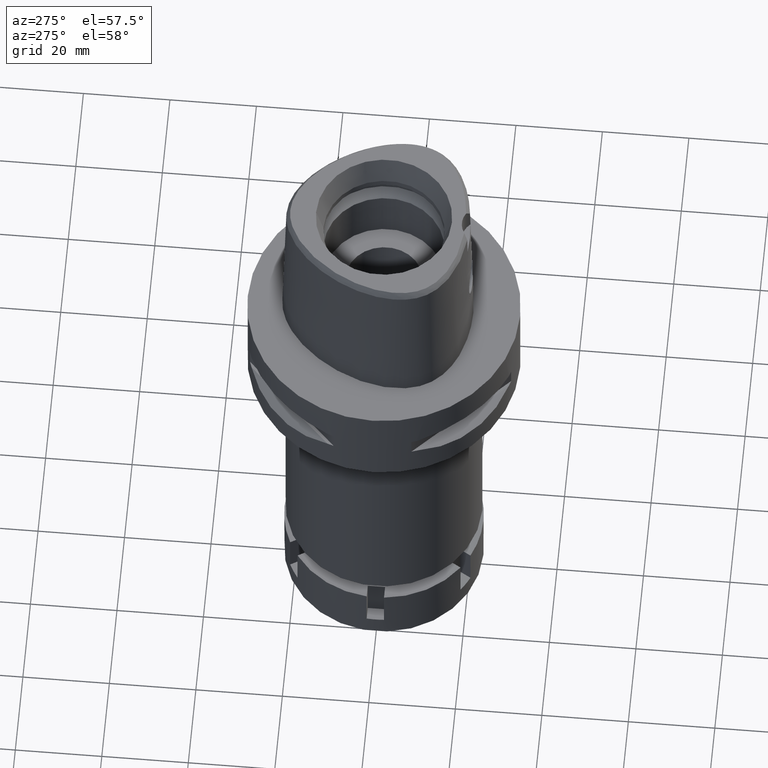
[diagram: clean part render]
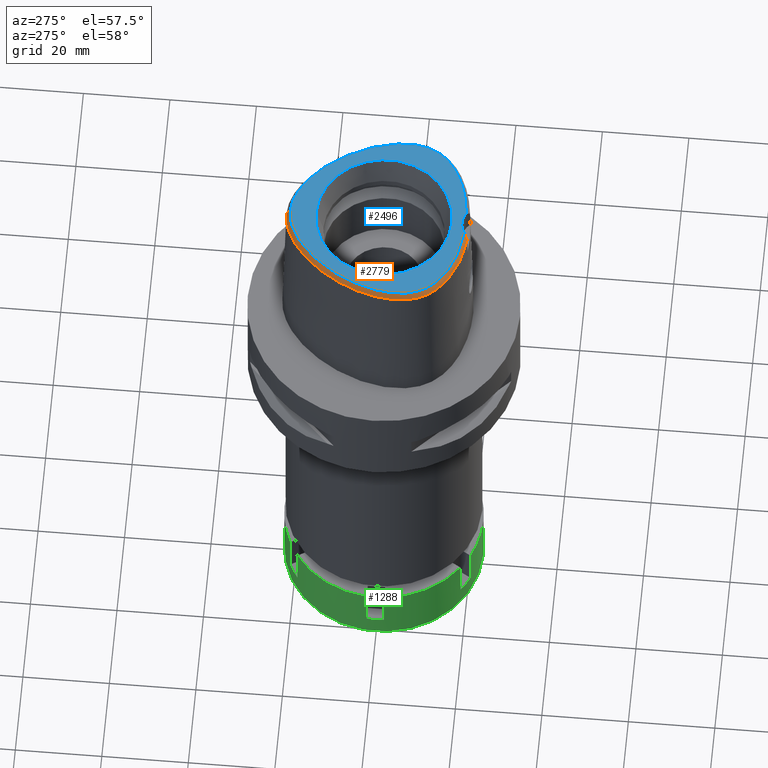
[diagram: same view with three faces highlighted in distinct colors, each labeled with its STEP entity id]
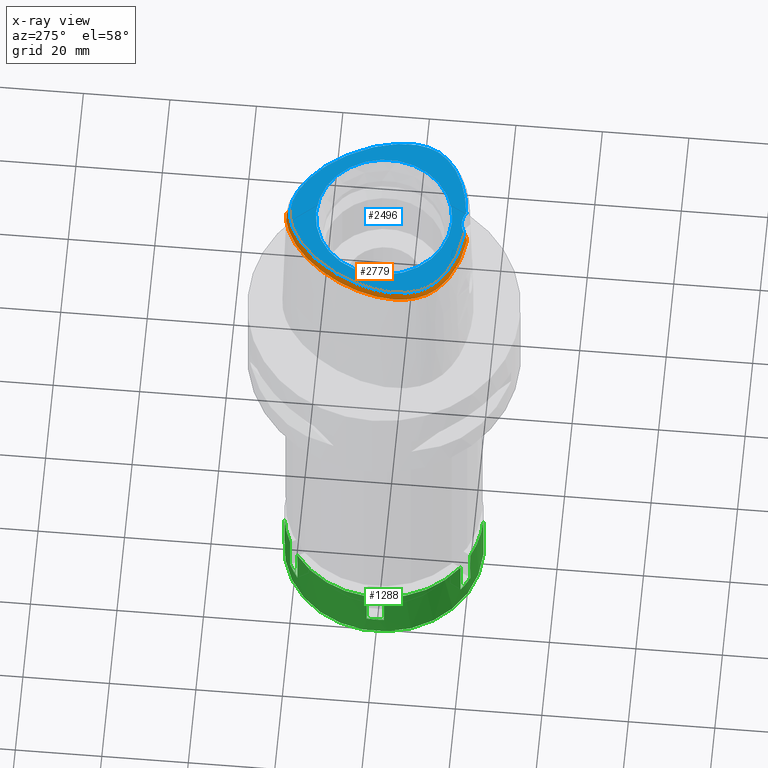
[diagram: x-ray of the same camera — body ghosted, the three highlighted faces saturated]
A machine part, auxiliary view with three faces highlighted in distinct colors.
The next image is the same camera in x-ray (body ghosted, the three faces saturated) — at least one of them is partly hidden behind the body in this view.
Their STEP definitions:

[orange] entity #2779 — the highlighted face is a freeform B-spline surface patch.
#10 = CARTESIAN_POINT ( 'NONE',  ( -15.15038978033000028, -15.03864540763000157, 37.56322869375999574 ) ) ;
#50 = CARTESIAN_POINT ( 'NONE',  ( -13.16713953014000005, 15.54133949133000137, 36.35395947133999783 ) ) ;
#70 = CARTESIAN_POINT ( 'NONE',  ( -3.625340603324000099, -19.67697575314999980, 36.35395948639999375 ) ) ;
#78 = CARTESIAN_POINT ( 'NONE',  ( -0.6885387249555999789, 22.28925284694999931, 36.95859335991000449 ) ) ;
#103 = CARTESIAN_POINT ( 'NONE',  ( -10.90612863959999856, 17.32090205043999731, 36.95859606775000117 ) ) ;
#126 = CARTESIAN_POINT ( 'NONE',  ( -3.587710275974999696, -19.32108740370999911, 36.95859407943999742 ) ) ;
#135 = CARTESIAN_POINT ( 'NONE',  ( -3.774312897363000019, 22.06457543379000086, 36.35395905078999590 ) ) ;
#147 = CARTESIAN_POINT ( 'NONE',  ( -20.30498420086619404, -2.177378896258108210, 38.00000000000602540 ) ) ;
#154 = ORIENTED_EDGE ( 'NONE', *, *, #4212, .F. ) ;
#164 = CARTESIAN_POINT ( 'NONE',  ( -1.444844799667000190, 22.57813437952000157, 36.35395800035999514 ) ) ;
#188 = CARTESIAN_POINT ( 'NONE',  ( -19.14162431203000025, 6.048192383088000668, 36.35395892603999357 ) ) ;
#219 = CARTESIAN_POINT ( 'NONE',  ( -20.18032387463000177, -6.169898114515000032, 38.16786330960000129 ) ) ;
#229 = CARTESIAN_POINT ( 'NONE',  ( -19.78262210840479085, -8.543146992552316021, 38.00000000000574829 ) ) ;
#250 = CARTESIAN_POINT ( 'NONE',  ( 0.5890749102622999667, 21.57221194158999822, 38.16786340651999865 ) ) ;
#251 = CARTESIAN_POINT ( 'NONE',  ( -18.70312053634999927, 4.222253440751999598, 38.16786341993000065 ) ) ;
#259 = CARTESIAN_POINT ( 'NONE',  ( -8.930096025510538382, -17.65000298921755117, 38.00000000000160583 ) ) ;
#280 = CARTESIAN_POINT ( 'NONE',  ( -15.16416192443000099, 11.20216741368000157, 38.16786325374999933 ) ) ;
#312 = CARTESIAN_POINT ( 'NONE',  ( -16.01279155438999879, 9.857706056881999857, 38.16786335483000414 ) ) ;
#343 = CARTESIAN_POINT ( 'NONE',  ( 0.3876455137443999832, 21.58262382774000088, 38.16786335732999902 ) ) ;
#344 = CARTESIAN_POINT ( 'NONE',  ( -12.48210061594000031, -16.57470777334999923, 37.56322838566000399 ) ) ;
#368 = CARTESIAN_POINT ( 'NONE',  ( -17.62230072611000153, -13.91838522321999960, 36.35395850057000189 ) ) ;
#391 = CARTESIAN_POINT ( 'NONE',  ( -0.6661047162883999562, 21.93191426646999886, 37.56322837070000276 ) ) ;
#392 = CARTESIAN_POINT ( 'NONE',  ( -19.22441456351000255, -10.58951875377000107, 37.56322835809000082 ) ) ;
#397 = CARTESIAN_POINT ( 'NONE',  ( -21.07430010673096632, -0.4408303445192867098, 36.52186244847991503 ) ) ;
#417 = CARTESIAN_POINT ( 'NONE',  ( -1.605369804321000336E-11, 22.56201468012000078, 36.52186680743999858 ) ) ;
#423 = CARTESIAN_POINT ( 'NONE',  ( -18.82384268177000308, -11.93989506594000005, 36.95859333033000382 ) ) ;
#448 = CARTESIAN_POINT ( 'NONE',  ( -18.11291861515000079, -12.29821181603999847, 37.56322859755999843 ) ) ;
#515 = CARTESIAN_POINT ( 'NONE',  ( -6.890736992325999566, 19.87733330400000398, 37.56322843629000374 ) ) ;
#534 = CARTESIAN_POINT ( 'NONE',  ( -2.658912240833000151, -19.04302082777000038, 37.56322870241000089 ) ) ;
#543 = CARTESIAN_POINT ( 'NONE',  ( -9.917277761165001593, 18.18069846793999744, 36.95859449011000208 ) ) ;
#565 = CARTESIAN_POINT ( 'NONE',  ( -2.315346753837999483, -19.42605033851999963, 36.95859411797000149 ) ) ;
#572 = CARTESIAN_POINT ( 'NONE',  ( -10.42248826329999822, 16.79304463237000178, 38.16786294503000221 ) ) ;
#595 = CARTESIAN_POINT ( 'NONE',  ( -4.743584968827000203, -18.82318717605999936, 37.56322844353000079 ) ) ;
#602 = CARTESIAN_POINT ( 'NONE',  ( -6.341444422649999524, 20.99792658918000043, 36.35395923324000478 ) ) ;
#631 = CARTESIAN_POINT ( 'NONE',  ( -16.05848412124000291, 11.79655541262999918, 36.35395960180999708 ) ) ;
#659 = CARTESIAN_POINT ( 'NONE',  ( -20.56233214407000176, -2.152052979090000040, 37.56322831735000278 ) ) ;
#662 = CARTESIAN_POINT ( 'NONE',  ( -16.39211280191862841, -14.95758113319446458, 36.52186244847991503 ) ) ;
#666 = CARTESIAN_POINT ( 'NONE',  ( -18.67608643721691664, -11.03561202290681109, 38.00000000000037659 ) ) ;
#667 = EDGE_CURVE ( 'NONE', #3250, #1306, #5200, .T. ) ;
#692 = CARTESIAN_POINT ( 'NONE',  ( -20.76973920178000199, -0.9174160877942999504, 36.95859383956999977 ) ) ;
#701 = CARTESIAN_POINT ( 'NONE',  ( -10.17136073855236944, -17.24644253469873334, 38.00000000000419931 ) ) ;
#723 = CARTESIAN_POINT ( 'NONE',  ( -19.54808487855000010, 1.495535803760999816, 38.16786291889000182 ) ) ;
#752 = CARTESIAN_POINT ( 'NONE',  ( -16.31992240643999992, 10.04153667100000114, 37.56322844011000228 ) ) ;
#777 = CARTESIAN_POINT ( 'NONE',  ( -14.72014127677000062, -16.17560700796000361, 36.35395908810999543 ) ) ;
#808 = CARTESIAN_POINT ( 'NONE',  ( -20.71450183704999759, -8.828806184154000647, 36.35395856603999931 ) ) ;
#816 = CARTESIAN_POINT ( 'NONE',  ( -18.24302769442001448, 5.671232572957698004, 37.99999999999921840 ) ) ;
#829 = CARTESIAN_POINT ( 'NONE',  ( -18.17745654283000079, -13.33370108546999866, 36.35395864847999547 ) ) ;
#835 = CARTESIAN_POINT ( 'NONE',  ( -3.470663397237000043E-11, 21.68728795390000030, 38.00000000000000000 ) ) ;
#852 = CARTESIAN_POINT ( 'NONE',  ( -18.52985251344999895, -11.73553907011000064, 37.56322835829999462 ) ) ;
#856 = CARTESIAN_POINT ( 'NONE',  ( -19.55745547455955347, -11.29150218116767057, 36.52186244847991503 ) ) ;
#881 = CARTESIAN_POINT ( 'NONE',  ( -19.54171041964999844, -10.75541008419999933, 36.95859332983000201 ) ) ;
#905 = CARTESIAN_POINT ( 'NONE',  ( -11.28010235475000123, -16.71605907058000184, 38.16786338290999936 ) ) ;
#930 = CARTESIAN_POINT ( 'NONE',  ( -10.49530729913000116, -18.16553456087999763, 36.35396120301000167 ) ) ;
#938 = CARTESIAN_POINT ( 'NONE',  ( -14.16093451503000189, 14.37682951567999901, 36.35395807642999699 ) ) ;
#974 = CARTESIAN_POINT ( 'NONE',  ( -9.159608993212000172, 19.22868359555000239, 36.35395806053999479 ) ) ;
#997 = CARTESIAN_POINT ( 'NONE',  ( -4.794238267573999401, -19.17753163727000043, 36.95859353355000110 ) ) ;
#1006 = CARTESIAN_POINT ( 'NONE',  ( -7.798332215142999679, 19.30990855371999970, 37.56322844619000278 ) ) ;
#1015 = CARTESIAN_POINT ( 'NONE',  ( -11.31790883121474245, -16.80796958613082381, 38.00000000000173372 ) ) ;
#1026 = CARTESIAN_POINT ( 'NONE',  ( -7.830028234579998525, -18.95689806576000080, 36.35396158063999650 ) ) ;
#1033 = CARTESIAN_POINT ( 'NONE',  ( -12.90047117724999914, 15.30255730893000177, 36.95859406990999929 ) ) ;
#1065 = CARTESIAN_POINT ( 'NONE',  ( -9.689138661478001069, 17.90485013905000145, 37.56322884472000112 ) ) ;
#1071 = CARTESIAN_POINT ( 'NONE',  ( -14.22011356156078854, -16.41829364185893070, 36.52186244847991503 ) ) ;
#1076 = CARTESIAN_POINT ( 'NONE',  ( -14.21001600787632668, -15.34519100085704757, 37.99999999999663913 ) ) ;
#1093 = CARTESIAN_POINT ( 'NONE',  ( -20.41580324275000180, -0.9709945636346999365, 37.56322857187999631 ) ) ;
#1099 = CARTESIAN_POINT ( 'NONE',  ( -7.599370508970219262, -18.01010694911127530, 38.00000000000416378 ) ) ;
#1114 = CARTESIAN_POINT ( 'NONE',  ( -18.81154580198999682, 5.909724988448000538, 36.95859372490999561 ) ) ;
#1123 = CARTESIAN_POINT ( 'NONE',  ( -16.36032397153664064, -13.76458520345263103, 38.00000000000527933 ) ) ;
#1148 = CARTESIAN_POINT ( 'NONE',  ( -20.40538841790999669, -7.070263956549999840, 37.56322838587999513 ) ) ;
#1159 = CARTESIAN_POINT ( 'NONE',  ( -2.017025177696580407, 21.50280829367656210, 37.99999999999843681 ) ) ;
#1179 = CARTESIAN_POINT ( 'NONE',  ( -20.99896943355000190, -3.250627267525999731, 36.95859349153000295 ) ) ;
#1187 = CARTESIAN_POINT ( 'NONE',  ( -18.79649882725014010, 4.256255933890983556, 37.99999999999428724 ) ) ;
#1203 = CARTESIAN_POINT ( 'NONE',  ( -21.12367516081000218, -0.8638376119537999331, 36.35395910725999613 ) ) ;
#1211 = CARTESIAN_POINT ( 'NONE',  ( -19.64434054693323972, 1.520253387635460474, 37.99999999999695888 ) ) ;
#1233 = CARTESIAN_POINT ( 'NONE',  ( -19.79142263181000061, -9.318827276318000230, 37.56322855786000048 ) ) ;
#1244 = CARTESIAN_POINT ( 'NONE',  ( -6.759433772717140521, 19.65454812513344152, 37.99999999999344880 ) ) ;
#1260 = DIRECTION ( 'NONE',  ( -1.086011392552015333E-11, -0.5092834681090075977, 0.8605988316927122295 ) ) ;
#1263 = CARTESIAN_POINT ( 'NONE',  ( 0.4009402277705999551, 21.94024584368000319, 37.56322843358999819 ) ) ;
#1264 = CARTESIAN_POINT ( 'NONE',  ( -19.88759380335999793, -7.786494108001000392, 38.16786336999999918 ) ) ;
#1266 = CARTESIAN_POINT ( 'NONE',  ( -19.88562090098679747, 4.345879983791757439, 36.52186244847991503 ) ) ;
#1283 = CARTESIAN_POINT ( 'NONE',  ( -14.94629303257000075, -14.74452356207999948, 38.16786325734000229 ) ) ;
#1286 = CARTESIAN_POINT ( 'NONE',  ( -17.27359245833809354, 9.972912913899113718, 36.52186244847991503 ) ) ;
#1304 = CARTESIAN_POINT ( 'NONE',  ( -18.59108613125999909, -10.98407522703000083, 38.16786333667000264 ) ) ;
#1306 = VERTEX_POINT ( 'NONE', #1426 ) ;
#1310 = CARTESIAN_POINT ( 'NONE',  ( -1.605369804321000336E-11, 22.56201468012000078, 36.52186680743999858 ) ) ;
#1333 = CARTESIAN_POINT ( 'NONE',  ( -15.55858327586000023, -15.62688909874999865, 36.35395956657999506 ) ) ;
#1357 = CARTESIAN_POINT ( 'NONE',  ( -6.304926216229000069, -18.92371235573000021, 36.95859340047000074 ) ) ;
#1365 = CARTESIAN_POINT ( 'NONE',  ( -11.14794882775999874, 17.58483075947000174, 36.35396262910999354 ) ) ;
#1395 = CARTESIAN_POINT ( 'NONE',  ( -7.600222001427000329, 19.01174521215000013, 38.16786335247999773 ) ) ;
#1422 = CARTESIAN_POINT ( 'NONE',  ( -2.715063951134999876, -19.75646607000999921, 36.35395959921999776 ) ) ;
#1426 = CARTESIAN_POINT ( 'NONE',  ( -3.637738201363999835, -19.56971413236999879, 36.52186244848000030 ) ) ;
#1432 = CARTESIAN_POINT ( 'NONE',  ( -4.601586388745999123, 21.77736232270999750, 36.35395856467999920 ) ) ;
#1459 = CARTESIAN_POINT ( 'NONE',  ( -2.197177101917999753, 22.46070701073999842, 36.35395857636999750 ) ) ;
#1482 = CARTESIAN_POINT ( 'NONE',  ( -13.32720054688000033, 13.70005323282000020, 38.16786340929999710 ) ) ;
#1514 = CARTESIAN_POINT ( 'NONE',  ( -20.19525176418000001, 0.2759473565857999966, 37.56322937251999861 ) ) ;
#1544 = CARTESIAN_POINT ( 'NONE',  ( -15.46226932337000015, 11.40029674666000048, 37.56322870310999917 ) ) ;
#1551 = CARTESIAN_POINT ( 'NONE',  ( -19.98419490692120704, -7.809898894995577656, 38.00000000000395062 ) ) ;
#1568 = CARTESIAN_POINT ( 'NONE',  ( -15.76037672230000020, 11.59842607965000028, 36.95859415246000168 ) ) ;
#1579 = CARTESIAN_POINT ( 'NONE',  ( -13.40435640711567444, 13.76268382997401396, 37.99999999999465672 ) ) ;
#1599 = CARTESIAN_POINT ( 'NONE',  ( -21.37513957252999930, -4.320513293869000293, 36.35395876102000301 ) ) ;
#1626 = CARTESIAN_POINT ( 'NONE',  ( -20.05309440341999760, -7.006534627607000409, 38.16786337566999521 ) ) ;
#1628 = CARTESIAN_POINT ( 'NONE',  ( -21.14970188364014803, -6.717195958887186791, 36.52186244847991503 ) ) ;
#1650 = CARTESIAN_POINT ( 'NONE',  ( -18.23586234512999837, -11.53118307427999945, 38.16786338626000230 ) ) ;
#1657 = CARTESIAN_POINT ( 'NONE',  ( -17.60426951086681413, 7.098774535281042297, 38.00000000000002842 ) ) ;
#1677 = CARTESIAN_POINT ( 'NONE',  ( -17.11838767238999992, -13.40967247836000098, 37.56322841088999809 ) ) ;
#1680 = CARTESIAN_POINT ( 'NONE',  ( -21.32871527669426825, -4.105831244393869817, 36.52186244847991503 ) ) ;
#1700 = CARTESIAN_POINT ( 'NONE',  ( -0.02690019403181000135, 22.30995777124000057, 36.95859372028999701 ) ) ;
#1701 = CARTESIAN_POINT ( 'NONE',  ( -19.84909125819999787, -10.12091896467999952, 36.95859363188999680 ) ) ;
#1721 = CARTESIAN_POINT ( 'NONE',  ( -14.34537603641000025, -15.56553910214999981, 37.56322856678999500 ) ) ;
#1747 = CARTESIAN_POINT ( 'NONE',  ( -20.46205571099999787, -9.569826591283000283, 36.35395905445000153 ) ) ;
#1785 = CARTESIAN_POINT ( 'NONE',  ( -8.518930515595000585, 18.36680724309000112, 38.16786341093000345 ) ) ;
#1803 = CARTESIAN_POINT ( 'NONE',  ( -11.55245620704999965, -17.37817269019999955, 36.95859335116000466 ) ) ;
#1811 = CARTESIAN_POINT ( 'NONE',  ( -2.131002494131999825, 22.10884525754000052, 36.95859350368999685 ) ) ;
#1828 = ORIENTED_EDGE ( 'NONE', *, *, #3659, .T. ) ;
#1829 = CARTESIAN_POINT ( 'NONE',  ( -10.37631308531999963, -17.82792754050999662, 36.95859516549000290 ) ) ;
#1841 = CARTESIAN_POINT ( 'NONE',  ( -1.998653278561000279, 21.40512175111999937, 38.16786335832000532 ) ) ;
#1854 = VECTOR ( 'NONE', #1260, 1000.000000000000227 ) ;
#1864 = CARTESIAN_POINT ( 'NONE',  ( -11.68863313321000064, -17.70922950001000018, 36.35395833528000509 ) ) ;
#1875 = CARTESIAN_POINT ( 'NONE',  ( -12.15890973423000077, 16.61225137499999960, 36.35396243106000469 ) ) ;
#1885 = CARTESIAN_POINT ( 'NONE',  ( -20.16012968311774500, -1.009698174524371383, 38.00000000000088107 ) ) ;
#1902 = CARTESIAN_POINT ( 'NONE',  ( -1.311317593712999940, 21.51235892397000171, 38.16786341707000219 ) ) ;
#1924 = CARTESIAN_POINT ( 'NONE',  ( -20.58820833919999771, 1.762630088281999852, 36.35396288532000142 ) ) ;
#1957 = CARTESIAN_POINT ( 'NONE',  ( -18.48392183556000035, 7.518029980911999921, 36.35395963090000038 ) ) ;
#1959 = CARTESIAN_POINT ( 'NONE',  ( -3.637738201363999835, -19.56971413236999879, 36.52186244848000030 ) ) ;
#1961 = CARTESIAN_POINT ( 'NONE',  ( -18.90964971338283007, -12.28759719904299530, 36.52186244847991503 ) ) ;
#1985 = CARTESIAN_POINT ( 'NONE',  ( -19.51022437302999890, 2.945135197882999822, 37.56322899059000520 ) ) ;
#2015 = CARTESIAN_POINT ( 'NONE',  ( -17.83768230383000031, 7.210022561101999905, 37.56322871081999892 ) ) ;
#2042 = CARTESIAN_POINT ( 'NONE',  ( -21.33654436753000283, -5.341518229841999421, 36.35395959483999206 ) ) ;
#2073 = CARTESIAN_POINT ( 'NONE',  ( -17.64390757331999993, -12.85614267694999846, 37.56322845014000222 ) ) ;
#2080 = CARTESIAN_POINT ( 'NONE',  ( -0.2181979014508494408, 21.68728795389095154, 37.99999999999499778 ) ) ;
#2097 = CARTESIAN_POINT ( 'NONE',  ( -15.65667228141999878, -14.22012789572000102, 38.16786334214000220 ) ) ;
#2120 = CARTESIAN_POINT ( 'NONE',  ( -0.6436707076212000445, 21.57457568598000108, 38.16786338149000102 ) ) ;
#2121 = CARTESIAN_POINT ( 'NONE',  ( -13.79854264827999977, -16.70852273475000160, 36.35395852602999867 ) ) ;
#2130 = CARTESIAN_POINT ( 'NONE',  ( -3.481017203588989695, 21.13509756881703083, 38.00000000000036948 ) ) ;
#2150 = CARTESIAN_POINT ( 'NONE',  ( -18.89725273204999922, -11.16970803659999945, 37.56322848734000530 ) ) ;
#2169 = CARTESIAN_POINT ( 'NONE',  ( -16.76765683253000105, -14.22752928475000012, 36.95859339051000347 ) ) ;
#2205 = CARTESIAN_POINT ( 'NONE',  ( -6.176918465431000094, 20.67997868339999812, 36.95859391927000814 ) ) ;
#2229 = CARTESIAN_POINT ( 'NONE',  ( -6.372594521581000038, -19.27520775933999886, 36.35395841322999644 ) ) ;
#2236 = CARTESIAN_POINT ( 'NONE',  ( -14.26396340222999903, 12.48874883375999900, 38.16786328278999463 ) ) ;
#2264 = CARTESIAN_POINT ( 'NONE',  ( -4.346641659772999766, 21.10826892917000208, 37.56322842790000749 ) ) ;
#2291 = CARTESIAN_POINT ( 'NONE',  ( -11.39494170168999965, 15.85757360652999992, 38.16786296522000299 ) ) ;
#2302 = CARTESIAN_POINT ( 'NONE',  ( -2.682279906006999948, -18.78035848609999903, 38.00000000000000000 ) ) ;
#2312 = CARTESIAN_POINT ( 'NONE',  ( -2.291183150406999935, -19.06905091896999949, 37.56322868863999531 ) ) ;
#2324 = CARTESIAN_POINT ( 'NONE',  ( -5.456848231470000421, 21.42381876989000133, 36.35395909257999847 ) ) ;
#2344 = VERTEX_POINT ( 'NONE', #1310 ) ;
#2350 = CARTESIAN_POINT ( 'NONE',  ( -16.79889324731000144, 8.470873738525000363, 38.16786331702000723 ) ) ;
#2354 = CARTESIAN_POINT ( 'NONE',  ( -7.300578999875143360, -19.07170748891650547, 36.52186244847991503 ) ) ;
#2358 = CARTESIAN_POINT ( 'NONE',  ( -13.33457781970206035, -15.85148397417591326, 38.00000000000486011 ) ) ;
#2375 = CARTESIAN_POINT ( 'NONE',  ( -20.28373007236999825, -3.282812625570000087, 38.16786336028000193 ) ) ;
#2384 = CARTESIAN_POINT ( 'NONE',  ( -19.28591707036719072, -9.869682450886196889, 37.99999999999479172 ) ) ;
#2410 = CARTESIAN_POINT ( 'NONE',  ( -20.65919246777000140, -4.313831115803999694, 37.56322847999999937 ) ) ;
#2420 = CARTESIAN_POINT ( 'NONE',  ( -20.38301517462483758, -3.278344853327663344, 38.00000000000067502 ) ) ;
#2435 = CARTESIAN_POINT ( 'NONE',  ( -20.64134975296000007, -3.266719946548000131, 37.56322842591000466 ) ) ;
#2462 = CARTESIAN_POINT ( 'NONE',  ( -17.51456253797000073, 7.056018851196999897, 38.16786325077999464 ) ) ;
#2470 = CARTESIAN_POINT ( 'NONE',  ( -5.893543501600780665, 20.13235399352013033, 38.00000000000671463 ) ) ;
#2490 = CARTESIAN_POINT ( 'NONE',  ( 0.6486116613664999475, 22.64393848766000161, 36.35395810376999748 ) ) ;
#2491 = CARTESIAN_POINT ( 'NONE',  ( -13.45768933027999914, -16.07889633377000038, 37.56322841765000220 ) ) ;
#2501 = CARTESIAN_POINT ( 'NONE',  ( -5.058220461389300482, 20.53445508814699139, 38.00000000000193978 ) ) ;
#2520 = CARTESIAN_POINT ( 'NONE',  ( -19.50958593361999860, -11.54097365574999934, 36.35395878867000619 ) ) ;
#2540 = CARTESIAN_POINT ( 'NONE',  ( 0.4275296558230999855, 22.65548987557000160, 36.35395858612999831 ) ) ;
#2541 = CARTESIAN_POINT ( 'NONE',  ( -15.87717211631000147, -14.50217158712000121, 37.56322847308999968 ) ) ;
#2549 = CARTESIAN_POINT ( 'NONE',  ( -1.323674540693887014, 21.61098849315564152, 38.00000000000522249 ) ) ;
#2571 = CARTESIAN_POINT ( 'NONE',  ( -16.29466636114000266, -13.68996367143999926, 38.16786337657000416 ) ) ;
#2598 = CARTESIAN_POINT ( 'NONE',  ( -19.20341933282999847, -11.35534084617999895, 36.95859363800999375 ) ) ;
#2620 = CARTESIAN_POINT ( 'NONE',  ( -3.512449621277000222, -18.60931070483000127, 38.16786326551999764 ) ) ;
#2649 = CARTESIAN_POINT ( 'NONE',  ( -10.13832465769000102, -17.15271349974999993, 38.16786309046000270 ) ) ;
#2660 = CARTESIAN_POINT ( 'NONE',  ( -0.7109727336228000016, 22.64659142744000064, 36.35395834911999913 ) ) ;
#2694 = CARTESIAN_POINT ( 'NONE',  ( -4.474114024259000288, 21.44281562593999979, 36.95859349628999979 ) ) ;
#2709 = CARTESIAN_POINT ( 'NONE',  ( -3.470663397237000043E-11, 21.68728795390000030, 38.00000000000000000 ) ) ;
#2712 = CARTESIAN_POINT ( 'NONE',  ( -9.003660969468999298, -17.89789688177000215, 37.56322955318000822 ) ) ;
#2713 = ORIENTED_EDGE ( 'NONE', *, *, #667, .F. ) ;
#2719 = CARTESIAN_POINT ( 'NONE',  ( -6.012392508212999864, 20.36203077763000024, 37.56322860531000174 ) ) ;
#2737 = CARTESIAN_POINT ( 'NONE',  ( -11.41627928090000132, -17.04711588039000247, 37.56322836702999979 ) ) ;
#2745 = CARTESIAN_POINT ( 'NONE',  ( -5.017568388334000318, 20.44375775073999790, 38.16786330568000096 ) ) ;
#2746 = CARTESIAN_POINT ( 'NONE',  ( -3.339321438881808213, -19.25325016375728993, 37.10705438588595229 ) ) ;
#2774 = CARTESIAN_POINT ( 'NONE',  ( -10.14541686085000016, 18.45654679682999699, 36.35396013550999328 ) ) ;
#2777 = CARTESIAN_POINT ( 'NONE',  ( -17.90324032096656026, -13.53935111955590287, 36.52186244847991503 ) ) ;
#2779 = ADVANCED_FACE ( 'NONE', ( #3340 ), #3987, .F. ) ;
#2800 = CARTESIAN_POINT ( 'NONE',  ( -16.62705325849999838, 10.22536728510999815, 36.95859352539000042 ) ) ;
#2809 = CARTESIAN_POINT ( 'NONE',  ( -17.45119705494280282, -12.68365517585401747, 38.00000000000255085 ) ) ;
#2829 = CARTESIAN_POINT ( 'NONE',  ( -20.24150051898000058, 1.673598660107999958, 36.95859622983999770 ) ) ;
#2838 = CARTESIAN_POINT ( 'NONE',  ( -20.40060226222913542, -4.311417605381127061, 38.00000000000714806 ) ) ;
#2861 = CARTESIAN_POINT ( 'NONE',  ( -16.93418411054999950, 10.40919789922999961, 36.35395861066999856 ) ) ;
#2888 = CARTESIAN_POINT ( 'NONE',  ( -20.97929791243999986, -5.318359200124000097, 36.95859414803999954 ) ) ;
#2911 = CARTESIAN_POINT ( 'NONE',  ( -20.53569896028000130, -6.213206022773999138, 37.56322855778000047 ) ) ;
#2921 = CARTESIAN_POINT ( 'NONE',  ( -12.44116897271390521, 14.89128547409819170, 37.99999999999827338 ) ) ;
#2943 = CARTESIAN_POINT ( 'NONE',  ( -14.15799341624000007, -15.26050514924000012, 38.16786330613000189 ) ) ;
#2966 = CARTESIAN_POINT ( 'NONE',  ( -18.90711870736000222, -10.42362742332999836, 38.16786338634999964 ) ) ;
#2970 = CARTESIAN_POINT ( 'NONE',  ( -13.70645028111170305, 15.04851272300122567, 36.52186244847991503 ) ) ;
#2991 = CARTESIAN_POINT ( 'NONE',  ( -19.45610609220999976, -9.193327618834999271, 38.16786330956999507 ) ) ;
#2995 = CARTESIAN_POINT ( 'NONE',  ( -0.7901461696975589089, 22.56201478746490352, 36.52186244847991503 ) ) ;
#3017 = CARTESIAN_POINT ( 'NONE',  ( -13.28726267127999883, -15.76408313328999888, 38.16786336346000041 ) ) ;
#3028 = B_SPLINE_CURVE_WITH_KNOTS ( 'NONE', 3,
 ( #2302, #4860, #3709, #5306, #4485, #1099, #259, #701, #1015, #3185, #2358, #1076, #5392, #3651, #1123, #3245, #2809, #4090, #4509, #666, #4543, #2384, #4885, #229, #1551, #3267, #3603, #5416, #2838, #2420, #147, #1885, #5029, #1211, #4148, #1187, #816, #1657, #3407, #4663, #3374, #4687, #1579, #2921, #5447, #5494, #4228, #5083, #5108, #1244, #2470, #2501, #3294, #2130, #4628, #1159, #2549, #4253, #2080, #835 ),
 .UNSPECIFIED., .F., .F.,
 ( 4, 1, 1, 1, 1, 1, 1, 1, 1, 1, 1, 1, 1, 1, 1, 1, 1, 1, 1, 1, 1, 1, 1, 1, 1, 1, 1, 1, 1, 1, 1, 1, 1, 1, 1, 1, 1, 1, 1, 1, 1, 1, 1, 1, 1, 1, 1, 1, 1, 1, 1, 1, 1, 1, 1, 1, 1, 4 ),
 ( 0.0000000000000000000, 0.005420919554200098744, 0.02318126027639999531, 0.04094160099879995407, 0.05870194172099996166, 0.07646228244330000035, 0.09422262316550000794, 0.1119829638877999356, 0.1297433046099999432, 0.1475036453321999508, 0.1652639860544999895, 0.1830243267768000281, 0.2007846674991000668, 0.2185450082212999634, 0.2363053489436000021, 0.2540656896658000097, 0.2718260303881000484, 0.2895863711103000560, 0.3073467118325999836, 0.3251070525547999912, 0.3428673932771000299, 0.3606277339994000686, 0.3783880747216000762, 0.3961484154438998928, 0.4139087561661000114, 0.4316690968884000501, 0.4494294376106000577, 0.4671897783328999854, 0.4849501190552000240, 0.5027104597774000316, 0.5204708004996999593, 0.5382311412219000779, 0.5559914819442000056, 0.5737518226664000132, 0.5915121633886999408, 0.6092725041108999484, 0.6270328448331999871, 0.6447931855555000258, 0.6625535262777000334, 0.6803138669999999610, 0.6980742077221999686, 0.7158345484445000073, 0.7335948891667000149, 0.7513552298890000536, 0.7691155706112000612, 0.7868759113336000199, 0.8046362520558000275, 0.8223965927780999552, 0.8401569335002999628, 0.8579172742224999704, 0.8756776149448000091, 0.8934379556670000166, 0.9111982963893099363, 0.9289586371115700070, 0.9467189778338299666, 0.9644793185560800453, 0.9822396592783400049, 1.000000000000000000 ),
 .UNSPECIFIED. ) ;
#3047 = CARTESIAN_POINT ( 'NONE',  ( -12.78879585974000044, -17.22164497713000486, 36.35395840547999313 ) ) ;
#3072 = CARTESIAN_POINT ( 'NONE',  ( -2.686988095984000235, -19.39974344888999980, 36.95859415081999799 ) ) ;
#3081 = CARTESIAN_POINT ( 'NONE',  ( -13.88302319230999871, 14.15123742139000029, 36.95859318737999644 ) ) ;
#3112 = CARTESIAN_POINT ( 'NONE',  ( -2.973290126073999673, 22.29086245803999944, 36.35395918132999782 ) ) ;
#3133 = EDGE_CURVE ( 'NONE', #2344, #3438, #5460, .T. ) ;
#3148 = CARTESIAN_POINT ( 'NONE',  ( -7.996442428859999119, 19.60807189527999839, 36.95859353990999807 ) ) ;
#3170 = CARTESIAN_POINT ( 'NONE',  ( -2.128423408895999902, -19.79603970124000156, 36.35395949360999879 ) ) ;
#3176 = CARTESIAN_POINT ( 'NONE',  ( -2.798742454348999598, 21.59641563115999929, 37.56322859152999882 ) ) ;
#3177 = CARTESIAN_POINT ( 'NONE',  ( -2.682279906006999948, -18.78035848609999903, 38.00000000000000000 ) ) ;
#3185 = CARTESIAN_POINT ( 'NONE',  ( -12.37132652997748572, -16.34104299088226142, 38.00000000000150635 ) ) ;
#3202 = CARTESIAN_POINT ( 'NONE',  ( -13.60511186959000085, 13.92564532711000069, 37.56322829834000032 ) ) ;
#3206 = CARTESIAN_POINT ( 'NONE',  ( -3.637738201363999835, -19.56971413236999879, 36.52186244848000030 ) ) ;
#3236 = CARTESIAN_POINT ( 'NONE',  ( -19.85212481645999816, 3.051125278595999912, 36.95859483793000066 ) ) ;
#3245 = CARTESIAN_POINT ( 'NONE',  ( -16.93638123745949997, -13.22593246128331224, 37.99999999999903366 ) ) ;
#3250 = VERTEX_POINT ( 'NONE', #4185 ) ;
#3260 = CARTESIAN_POINT ( 'NONE',  ( -20.20607828970000241, -2.187112344610000036, 38.16786340201000627 ) ) ;
#3267 = CARTESIAN_POINT ( 'NONE',  ( -20.15090095364848821, -7.024227649787176730, 38.00000000000503064 ) ) ;
#3285 = CARTESIAN_POINT ( 'NONE',  ( -17.42985205068000099, 8.809080024221000116, 36.95859375995000562 ) ) ;
#3294 = CARTESIAN_POINT ( 'NONE',  ( -4.254559144977351437, 20.86660163697591486, 37.99999999999717204 ) ) ;
#3314 = CARTESIAN_POINT ( 'NONE',  ( -14.84071060225999972, 12.91284835597999958, 36.95859397228000631 ) ) ;
#3319 = CARTESIAN_POINT ( 'NONE',  ( -20.09619618741098179, -10.23243843868510972, 36.52186244847991503 ) ) ;
#3340 = FACE_OUTER_BOUND ( 'NONE', #3770, .T. ) ;
#3341 = CARTESIAN_POINT ( 'NONE',  ( -17.74533145235999854, 8.978183167070000081, 36.35395898140999549 ) ) ;
#3365 = CARTESIAN_POINT ( 'NONE',  ( -17.37034419925000250, -13.66402885078999851, 36.95859345573000354 ) ) ;
#3374 = CARTESIAN_POINT ( 'NONE',  ( -15.24692477332513185, 11.25717358966068105, 38.00000000000471800 ) ) ;
#3397 = CARTESIAN_POINT ( 'NONE',  ( -20.02989326778000034, -8.618945700605999960, 37.56322842827000130 ) ) ;
#3407 = CARTESIAN_POINT ( 'NONE',  ( -16.88647904405223699, 8.517821442302320634, 38.00000000000387956 ) ) ;
#3422 = CARTESIAN_POINT ( 'NONE',  ( -16.31817178611000330, -15.06625896991000069, 36.35395873496999997 ) ) ;
#3426 = CARTESIAN_POINT ( 'NONE',  ( -1.605369804321000336E-11, 22.56201468012000078, 36.52186680743999858 ) ) ;
#3438 = VERTEX_POINT ( 'NONE', #2709 ) ;
#3445 = CARTESIAN_POINT ( 'NONE',  ( -20.37219755240999675, -8.723875942380001192, 36.95859349715000519 ) ) ;
#3473 = CARTESIAN_POINT ( 'NONE',  ( -18.67457766933999963, -12.74238865336999993, 36.35395920405000680 ) ) ;
#3504 = CARTESIAN_POINT ( 'NONE',  ( -2.084480387990000239, -19.08177111454000041, 37.56322867438999680 ) ) ;
#3512 = CARTESIAN_POINT ( 'NONE',  ( -4.219169295286000043, 20.77372223240000082, 38.16786335951000098 ) ) ;
#3529 = CARTESIAN_POINT ( 'NONE',  ( -7.660574762563000739, -18.26133479526000158, 37.56322922817999910 ) ) ;
#3536 = CARTESIAN_POINT ( 'NONE',  ( -3.558842231872000106, 21.38173140171999975, 37.56322855688999596 ) ) ;
#3556 = CARTESIAN_POINT ( 'NONE',  ( -8.901822988930000236, -17.55473053042000231, 38.16786292704000516 ) ) ;
#3566 = CARTESIAN_POINT ( 'NONE',  ( -8.732490008134000448, 18.65409936058000184, 37.56322829412999909 ) ) ;
#3588 = CARTESIAN_POINT ( 'NONE',  ( -2.062508877537000185, -18.72463682118999984, 38.16786326479000024 ) ) ;
#3595 = CARTESIAN_POINT ( 'NONE',  ( -12.63380282436000002, 15.06377512651999950, 37.56322866848000075 ) ) ;
#3603 = CARTESIAN_POINT ( 'NONE',  ( -20.27898581532433298, -6.181921586189814022, 38.00000000000209610 ) ) ;
#3612 = CARTESIAN_POINT ( 'NONE',  ( -12.63544823784000037, -16.89817637523999849, 36.95859339557000567 ) ) ;
#3617 = CARTESIAN_POINT ( 'NONE',  ( -5.310421617090999469, 21.09713176350999930, 36.95859383028000167 ) ) ;
#3643 = CARTESIAN_POINT ( 'NONE',  ( -20.06186728372999895, -1.024573039475000114, 38.16786330417999551 ) ) ;
#3651 = CARTESIAN_POINT ( 'NONE',  ( -15.71788912669596527, -14.29843101565650798, 37.99999999999530331 ) ) ;
#3659 = EDGE_CURVE ( 'NONE', #3250, #3438, #3028, .T. ) ;
#3676 = CARTESIAN_POINT ( 'NONE',  ( -19.03946419524000078, 4.344728620406000275, 37.56322827067999981 ) ) ;
#3702 = CARTESIAN_POINT ( 'NONE',  ( -18.48146729195000049, 5.771257593808000408, 37.56322852378999499 ) ) ;
#3709 = CARTESIAN_POINT ( 'NONE',  ( -3.522896839653774315, -18.70811514173104939, 38.00000000000355271 ) ) ;
#3725 = CARTESIAN_POINT ( 'NONE',  ( -19.89479269875999989, 1.584567231934999931, 37.56322957437000554 ) ) ;
#3754 = CARTESIAN_POINT ( 'NONE',  ( -21.24644913157000303, -6.299821839290999925, 36.35395905416000062 ) ) ;
#3770 = EDGE_LOOP ( 'NONE', ( #1828, #5499, #154, #2713 ) ) ;
#3781 = CARTESIAN_POINT ( 'NONE',  ( -17.37713308856999816, -12.61736347269000014, 38.16786335097000205 ) ) ;
#3806 = CARTESIAN_POINT ( 'NONE',  ( -19.52211539878999957, -9.975052416126001020, 37.56322848477000065 ) ) ;
#3832 = CARTESIAN_POINT ( 'NONE',  ( -0.02534327079622999968, 21.59391821884999985, 38.16786332339999888 ) ) ;
#3833 = CARTESIAN_POINT ( 'NONE',  ( -12.32875299405000113, -16.25123917147000085, 38.16786337574999521 ) ) ;
#3855 = CARTESIAN_POINT ( 'NONE',  ( -19.85900627579999878, -10.92130141464000026, 36.35395830158000052 ) ) ;
#3858 = CARTESIAN_POINT ( 'NONE',  ( -2.376843896517638388, 22.39422508473669637, 36.52186244847991503 ) ) ;
#3877 = CARTESIAN_POINT ( 'NONE',  ( -17.00415206822000158, -14.49631209141000099, 36.35395839748000668 ) ) ;
#3911 = CARTESIAN_POINT ( 'NONE',  ( -7.254270327737000201, 20.49414863718999769, 36.35395859631999826 ) ) ;
#3930 = CARTESIAN_POINT ( 'NONE',  ( -3.550079948626000181, -18.96519905427000197, 37.56322867248000108 ) ) ;
#3937 = CARTESIAN_POINT ( 'NONE',  ( -14.55233700223999982, 12.70079859486999929, 37.56322862752999470 ) ) ;
#3963 = CARTESIAN_POINT ( 'NONE',  ( -9.460999561790000456, 17.62900181015000101, 38.16786319931999572 ) ) ;
#3984 = CARTESIAN_POINT ( 'NONE',  ( -4.692931670080000117, -18.46884271483999740, 38.16786335351000048 ) ) ;
#3987 = B_SPLINE_SURFACE_WITH_KNOTS ( 'NONE', 3, 3, ( 
 ( #250, #5047, #4617, #2490 ),
 ( #343, #1263, #4678, #2540 ),
 ( #3832, #5540, #1700, #4244 ),
 ( #2120, #391, #78, #2660 ),
 ( #1902, #4447, #5298, #164 ),
 ( #1841, #4787, #1811, #1459 ),
 ( #4025, #3176, #3995, #3112 ),
 ( #4479, #3536, #4851, #135 ),
 ( #3512, #2264, #2694, #1432 ),
 ( #2745, #4361, #3617, #2324 ),
 ( #4416, #2719, #2205, #602 ),
 ( #5269, #515, #5238, #3911 ),
 ( #1395, #1006, #3148, #4391 ),
 ( #1785, #3566, #4818, #974 ),
 ( #3963, #1065, #543, #2774 ),
 ( #572, #5322, #103, #1365 ),
 ( #2291, #4904, #5211, #1875 ),
 ( #4876, #3595, #1033, #50 ),
 ( #1482, #3202, #3081, #938 ),
 ( #2236, #3937, #3314, #4139 ),
 ( #280, #1544, #1568, #631 ),
 ( #312, #752, #2800, #2861 ),
 ( #2350, #4588, #3285, #3341 ),
 ( #2462, #2015, #4532, #1957 ),
 ( #4988, #3702, #1114, #188 ),
 ( #251, #3676, #5382, #4564 ),
 ( #4052, #1985, #3236, #4500 ),
 ( #723, #3725, #2829, #1924 ),
 ( #4163, #1514, #5048, #4932 ),
 ( #3643, #1093, #692, #1203 ),
 ( #3260, #659, #4958, #5353 ),
 ( #2375, #2435, #1179, #5409 ),
 ( #5466, #2410, #5435, #1599 ),
 ( #5022, #4081, #2888, #2042 ),
 ( #219, #2911, #4115, #3754 ),
 ( #1626, #1148, #5542, #4700 ),
 ( #1264, #5173, #4618, #4245 ),
 ( #4303, #3397, #3445, #808 ),
 ( #2991, #1233, #4653, #1747 ),
 ( #5102, #3806, #1701, #5122 ),
 ( #2966, #392, #881, #3855 ),
 ( #1304, #2150, #2598, #2520 ),
 ( #1650, #852, #423, #4679 ),
 ( #4728, #448, #5488, #3473 ),
 ( #3781, #2073, #5075, #829 ),
 ( #4221, #1677, #3365, #368 ),
 ( #2571, #5564, #2169, #3877 ),
 ( #2097, #2541, #4274, #3422 ),
 ( #1283, #10, #4192, #1333 ),
 ( #2943, #1721, #5146, #777 ),
 ( #3017, #2491, #5510, #2121 ),
 ( #3833, #344, #3612, #3047 ),
 ( #905, #2737, #1803, #1864 ),
 ( #2649, #4870, #1829, #930 ),
 ( #3556, #2712, #4438, #5290 ),
 ( #5204, #3529, #4385, #1026 ),
 ( #5260, #4811, #1357, #2229 ),
 ( #3984, #595, #997, #4352 ),
 ( #2620, #3930, #126, #70 ),
 ( #4756, #534, #3072, #1422 ),
 ( #4408, #2312, #565, #5229 ),
 ( #3588, #3504, #4017, #3170 ) ),
 .UNSPECIFIED., .F., .F., .F.,
 ( 4, 1, 1, 1, 1, 1, 1, 1, 1, 1, 1, 1, 1, 1, 1, 1, 1, 1, 1, 1, 1, 1, 1, 1, 1, 1, 1, 1, 1, 1, 1, 1, 1, 1, 1, 1, 1, 1, 1, 1, 1, 1, 1, 1, 1, 1, 1, 1, 1, 1, 1, 1, 1, 1, 1, 1, 1, 1, 1, 4 ),
 ( 4, 4 ),
 ( -0.01585043674195000044, 0.0000000000000000000, 0.01776034072165999858, 0.03552068144391999638, 0.05328102216616999870, 0.07104136288842999303, 0.08880170361069000817, 0.1065620443330000111, 0.1243223850551999909, 0.1420827257775000019, 0.1598430664997000095, 0.1776034072219000171, 0.1953637479442000002, 0.2131240886664000078, 0.2308844293887999943, 0.2486447701109999742, 0.2664051108332999851, 0.2841654515554999927, 0.3019257922778000314, 0.3196861329999999835, 0.3374464737223000221, 0.3552068144444999742, 0.3729671551668000129, 0.3907274958890999961, 0.4084878366113000037, 0.4262481773335999868, 0.4440085180557999944, 0.4617688587780999776, 0.4795291995003000407, 0.4972895402225999684, 0.5150498809447999760, 0.5328102216671000146, 0.5505705623893999423, 0.5683309031115999499, 0.5860912438338999886, 0.6038515845561001072, 0.6216119252783999238, 0.6393722660005999314, 0.6571326067228999701, 0.6748929474452000088, 0.6926532881674000164, 0.7104136288896999440, 0.7281739696118999516, 0.7459343103341999903, 0.7636946510563999979, 0.7814549917787000366, 0.7992153325008999332, 0.8169756732231999719, 0.8347360139455000105, 0.8524963546678000492, 0.8702566953900000568, 0.8880170361122000644, 0.9057773768344999921, 0.9235377175566999997, 0.9412980582790000383, 0.9590583990012000459, 0.9768187397236000047, 0.9945790804457999013, 1.000000000000000000, 1.006922200500000031 ),
 ( -0.08996523102307001085, 1.089989399992999930 ),
 .UNSPECIFIED. ) ;
#3995 = CARTESIAN_POINT ( 'NONE',  ( -2.886016290211000257, 21.94363904460000114, 36.95859388643000187 ) ) ;
#4017 = CARTESIAN_POINT ( 'NONE',  ( -2.106451898442999848, -19.43890540789000099, 36.95859408399999779 ) ) ;
#4025 = CARTESIAN_POINT ( 'NONE',  ( -2.711468618486000182, 21.24919221772000100, 38.16786329663000288 ) ) ;
#4052 = CARTESIAN_POINT ( 'NONE',  ( -19.16832392960000320, 2.839145117169999732, 38.16786314325999996 ) ) ;
#4081 = CARTESIAN_POINT ( 'NONE',  ( -20.62205145734000311, -5.295200170405999884, 37.56322870124999724 ) ) ;
#4090 = CARTESIAN_POINT ( 'NONE',  ( -17.91005512243686226, -12.13778127739347745, 38.00000000000078160 ) ) ;
#4115 = CARTESIAN_POINT ( 'NONE',  ( -20.89107404591999995, -6.256513931031999931, 36.95859380597000410 ) ) ;
#4139 = CARTESIAN_POINT ( 'NONE',  ( -15.12908420227000050, 13.12489811708999987, 36.35395931702000638 ) ) ;
#4148 = CARTESIAN_POINT ( 'NONE',  ( -19.26324493738939125, 2.868570891456882599, 38.00000000000267164 ) ) ;
#4163 = CARTESIAN_POINT ( 'NONE',  ( -19.84451555991999783, 0.2043875055684000186, 38.16786299647999670 ) ) ;
#4185 = CARTESIAN_POINT ( 'NONE',  ( -2.682279906006999948, -18.78035848609999903, 38.00000000000000000 ) ) ;
#4192 = CARTESIAN_POINT ( 'NONE',  ( -15.35448652810000070, -15.33276725319000100, 36.95859413016999895 ) ) ;
#4199 = CARTESIAN_POINT ( 'NONE',  ( -10.15538788052546693, 18.47129535094346764, 36.52186244847991503 ) ) ;
#4212 = EDGE_CURVE ( 'NONE', #1306, #2344, #5227, .T. ) ;
#4221 = CARTESIAN_POINT ( 'NONE',  ( -16.86643114552999734, -13.15531610592999989, 38.16786336604999974 ) ) ;
#4223 = CARTESIAN_POINT ( 'NONE',  ( -7.108589416785569881, 20.52412325828860062, 36.52186244847991503 ) ) ;
#4228 = CARTESIAN_POINT ( 'NONE',  ( -9.524337278001453910, 17.70558492631516856, 38.00000000000083844 ) ) ;
#4244 = CARTESIAN_POINT ( 'NONE',  ( -0.02767865564959999872, 22.66797754743999960, 36.35395891872999385 ) ) ;
#4245 = CARTESIAN_POINT ( 'NONE',  ( -20.93144998164000015, -8.039402517997999098, 36.35395846188999514 ) ) ;
#4253 = CARTESIAN_POINT ( 'NONE',  ( -0.6498990081534655738, 21.67378274708105579, 37.99999999999462119 ) ) ;
#4274 = CARTESIAN_POINT ( 'NONE',  ( -16.09767195120999972, -14.78421527851000050, 36.95859360402999982 ) ) ;
#4303 = CARTESIAN_POINT ( 'NONE',  ( -19.68758898313999950, -8.514015458832000505, 38.16786335938000008 ) ) ;
#4352 = CARTESIAN_POINT ( 'NONE',  ( -4.844891566321000376, -19.53187609848000150, 36.35395862357000141 ) ) ;
#4361 = CARTESIAN_POINT ( 'NONE',  ( -5.163995002712000293, 20.77044475711999638, 37.56322856797999066 ) ) ;
#4385 = CARTESIAN_POINT ( 'NONE',  ( -7.745301498572000121, -18.60911643050999942, 36.95859540441000490 ) ) ;
#4391 = CARTESIAN_POINT ( 'NONE',  ( -8.194552642575999357, 19.90623523684999796, 36.35395863362000313 ) ) ;
#4408 = CARTESIAN_POINT ( 'NONE',  ( -2.267019546975999944, -18.71205149942999668, 38.16786325931000334 ) ) ;
#4416 = CARTESIAN_POINT ( 'NONE',  ( -5.847866550994999635, 20.04408287185000148, 38.16786329133999800 ) ) ;
#4438 = CARTESIAN_POINT ( 'NONE',  ( -9.105498950008001913, -18.24106323312000200, 36.95859617931999708 ) ) ;
#4447 = CARTESIAN_POINT ( 'NONE',  ( -1.355826662364999935, 21.86761740916000107, 37.56322827815999688 ) ) ;
#4479 = CARTESIAN_POINT ( 'NONE',  ( -3.451106899127000194, 21.04030938569000142, 38.16786330994000309 ) ) ;
#4485 = CARTESIAN_POINT ( 'NONE',  ( -6.188376196366234261, -18.31830638231475561, 38.00000000000022027 ) ) ;
#4500 = CARTESIAN_POINT ( 'NONE',  ( -20.19402525989000097, 3.157115359309000446, 36.35396068525999880 ) ) ;
#4505 = CARTESIAN_POINT ( 'NONE',  ( -10.91891098964689100, -18.03046406390404854, 36.52186244847991503 ) ) ;
#4509 = CARTESIAN_POINT ( 'NONE',  ( -18.31748213707045636, -11.58791794387357754, 37.99999999999749889 ) ) ;
#4532 = CARTESIAN_POINT ( 'NONE',  ( -18.16080206970000432, 7.364026271006999913, 36.95859417085999610 ) ) ;
#4543 = CARTESIAN_POINT ( 'NONE',  ( -18.99520880204055473, -10.46968343925917644, 38.00000000000446221 ) ) ;
#4564 = CARTESIAN_POINT ( 'NONE',  ( -19.71215151303999846, 4.589678979714999940, 36.35395797216999370 ) ) ;
#4588 = CARTESIAN_POINT ( 'NONE',  ( -17.11437264898999899, 8.639976881373002016, 37.56322853847999710 ) ) ;
#4617 = CARTESIAN_POINT ( 'NONE',  ( 0.6287660776651000649, 22.28669630563999604, 36.95859320468999698 ) ) ;
#4618 = CARTESIAN_POINT ( 'NONE',  ( -20.58349792221000030, -7.955099714665999855, 36.95859343126000596 ) ) ;
#4628 = CARTESIAN_POINT ( 'NONE',  ( -2.735698246183015048, 21.34559102902644057, 38.00000000000260059 ) ) ;
#4653 = CARTESIAN_POINT ( 'NONE',  ( -20.12673917140000412, -9.444326933800999413, 36.95859380616000323 ) ) ;
#4658 = CARTESIAN_POINT ( 'NONE',  ( -20.67704215116111754, -8.734985316449213499, 36.52186244847991503 ) ) ;
#4663 = CARTESIAN_POINT ( 'NONE',  ( -16.09805956313374864, 9.908742513516868300, 38.00000000000630962 ) ) ;
#4678 = CARTESIAN_POINT ( 'NONE',  ( 0.4142349417969000136, 22.29786785961999840, 36.95859350986000180 ) ) ;
#4679 = CARTESIAN_POINT ( 'NONE',  ( -19.11783285009000011, -12.14425106177000124, 36.35395830236000592 ) ) ;
#4687 = CARTESIAN_POINT ( 'NONE',  ( -14.34402387965517534, 12.54761970512867286, 37.99999999999980105 ) ) ;
#4700 = CARTESIAN_POINT ( 'NONE',  ( -21.10997644688000108, -7.197722614437000566, 36.35395840630999942 ) ) ;
#4728 = CARTESIAN_POINT ( 'NONE',  ( -17.83208908805000092, -12.07612339737999996, 38.16786329430999558 ) ) ;
#4756 = CARTESIAN_POINT ( 'NONE',  ( -2.630836385683000156, -18.68629820665000096, 38.16786325400999402 ) ) ;
#4787 = CARTESIAN_POINT ( 'NONE',  ( -2.064827886346999986, 21.75698350433000172, 37.56322843100000597 ) ) ;
#4811 = CARTESIAN_POINT ( 'NONE',  ( -6.237257910877000100, -18.57221695213000245, 37.56322838770999795 ) ) ;
#4818 = CARTESIAN_POINT ( 'NONE',  ( -8.946049500673000310, 18.94139147806999901, 36.95859317733999916 ) ) ;
#4851 = CARTESIAN_POINT ( 'NONE',  ( -3.666577564616999574, 21.72315341774999808, 36.95859380383999593 ) ) ;
#4860 = CARTESIAN_POINT ( 'NONE',  ( -2.841965291530544668, -18.76757795571883491, 37.99999999999980815 ) ) ;
#4870 = CARTESIAN_POINT ( 'NONE',  ( -10.25731887150000077, -17.49032052013000182, 37.56322912798000146 ) ) ;
#4876 = CARTESIAN_POINT ( 'NONE',  ( -12.36713447148000178, 14.82499294411999990, 38.16786326704999510 ) ) ;
#4885 = CARTESIAN_POINT ( 'NONE',  ( -19.54919922642150354, -9.228169790567800845, 38.00000000000262901 ) ) ;
#4904 = CARTESIAN_POINT ( 'NONE',  ( -11.64959771253999854, 16.10913286267999922, 37.56322945383000445 ) ) ;
#4907 = CARTESIAN_POINT ( 'NONE',  ( -4.467522189394514065, -19.48130287050325649, 36.52186244847991503 ) ) ;
#4932 = CARTESIAN_POINT ( 'NONE',  ( -20.89672417271999905, 0.4190670586205000325, 36.35396212461999710 ) ) ;
#4933 = CARTESIAN_POINT ( 'NONE',  ( -3.014271304865120182, -18.99139391533939047, 37.59976690305929026 ) ) ;
#4958 = CARTESIAN_POINT ( 'NONE',  ( -20.91858599842999666, -2.116993613570000043, 36.95859323267999486 ) ) ;
#4988 = CARTESIAN_POINT ( 'NONE',  ( -18.15138878191000060, 5.632790199167999390, 38.16786332265999704 ) ) ;
#5022 = CARTESIAN_POINT ( 'NONE',  ( -20.26480500225000014, -5.272041140688000560, 38.16786325445999495 ) ) ;
#5025 = CARTESIAN_POINT ( 'NONE',  ( -4.757642277159060740, 21.67478330407760723, 36.52186244847991503 ) ) ;
#5029 = CARTESIAN_POINT ( 'NONE',  ( -19.94188961899601509, 0.2242544969875550076, 38.00000000000718359 ) ) ;
#5047 = CARTESIAN_POINT ( 'NONE',  ( 0.6089204939636999603, 21.92945412361999757, 37.56322830559999915 ) ) ;
#5048 = CARTESIAN_POINT ( 'NONE',  ( -20.54598796845000308, 0.3475072076030999435, 36.95859574857000496 ) ) ;
#5075 = CARTESIAN_POINT ( 'NONE',  ( -17.91068205807999902, -13.09492188121000211, 36.95859354930999530 ) ) ;
#5083 = CARTESIAN_POINT ( 'NONE',  ( -8.578220530113341624, 18.44656747109238992, 38.00000000000355271 ) ) ;
#5102 = CARTESIAN_POINT ( 'NONE',  ( -19.19513953937999773, -9.829185867576001101, 38.16786333765000450 ) ) ;
#5108 = CARTESIAN_POINT ( 'NONE',  ( -7.655222869371622885, 19.09452359226458285, 37.99999999999694467 ) ) ;
#5122 = CARTESIAN_POINT ( 'NONE',  ( -20.17606711762000060, -10.26678551322000033, 36.35395877901000006 ) ) ;
#5146 = CARTESIAN_POINT ( 'NONE',  ( -14.53275865658999955, -15.87057305504999860, 36.95859382745000232 ) ) ;
#5173 = CARTESIAN_POINT ( 'NONE',  ( -20.23554586279000134, -7.870796911334000612, 37.56322840063000257 ) ) ;
#5200 = B_SPLINE_CURVE_WITH_KNOTS ( 'NONE', 3,
 ( #3177, #4933, #2746, #1959 ),
 .UNSPECIFIED., .F., .F.,
 ( 4, 4 ),
 ( 0.0000000000000000000, 1.000000000000000000 ),
 .UNSPECIFIED. ) ;
#5204 = CARTESIAN_POINT ( 'NONE',  ( -7.575848026554000469, -17.91355316001000020, 38.16786305195000040 ) ) ;
#5211 = CARTESIAN_POINT ( 'NONE',  ( -11.90425372338000010, 16.36069211883999941, 36.95859594245000324 ) ) ;
#5227 = B_SPLINE_CURVE_WITH_KNOTS ( 'NONE', 3,
 ( #3206, #4907, #2354, #4505, #1071, #662, #2777, #1961, #856, #3319, #4658, #1628, #1680, #397, #1266, #1286, #2970, #4199, #4223, #5025, #3858, #2995, #3426 ),
 .UNSPECIFIED., .F., .F.,
 ( 4, 1, 1, 1, 1, 1, 1, 1, 1, 1, 1, 1, 1, 1, 1, 1, 1, 1, 1, 1, 4 ),
 ( 0.0000000000000000000, 0.03580973941716368569, 0.1234633994701200693, 0.1672902294965457060, 0.2111170595230765779, 0.2549438895495022006, 0.2768573045627149565, 0.2987707195759278234, 0.3206841345891406347, 0.3425975496023535016, 0.3864243796288842070, 0.4302512096552046361, 0.4740780396817355080, 0.5617316997345866980, 0.6493853597875431927, 0.7370390198403943272, 0.8246926798932455727, 0.8685195099196713064, 0.9123463399461704260, 0.9561731699726067069, 1.000000000000000000 ),
 .UNSPECIFIED. ) ;
#5229 = CARTESIAN_POINT ( 'NONE',  ( -2.339510357268999918, -19.78304975806999977, 36.35395954729999346 ) ) ;
#5238 = CARTESIAN_POINT ( 'NONE',  ( -7.072503660031000727, 20.18574097060000128, 36.95859351630999612 ) ) ;
#5260 = CARTESIAN_POINT ( 'NONE',  ( -6.169589605523999154, -18.22072154852999759, 38.16786337495999959 ) ) ;
#5269 = CARTESIAN_POINT ( 'NONE',  ( -6.708970324621000181, 19.56892563740000313, 38.16786335628000160 ) ) ;
#5290 = CARTESIAN_POINT ( 'NONE',  ( -9.207336930547999287, -18.58422958447000184, 36.35396280546000014 ) ) ;
#5298 = CARTESIAN_POINT ( 'NONE',  ( -1.400335731016000063, 22.22287589433999955, 36.95859313925999601 ) ) ;
#5306 = CARTESIAN_POINT ( 'NONE',  ( -4.706994425064133125, -18.56721852572247755, 38.00000000000225242 ) ) ;
#5322 = CARTESIAN_POINT ( 'NONE',  ( -10.66430845144999928, 17.05697334140000265, 37.56322950639000169 ) ) ;
#5353 = CARTESIAN_POINT ( 'NONE',  ( -21.27483985279000223, -2.081934248050000047, 36.35395814801999848 ) ) ;
#5382 = CARTESIAN_POINT ( 'NONE',  ( -19.37580785413999962, 4.467203800059999175, 36.95859312142999897 ) ) ;
#5392 = CARTESIAN_POINT ( 'NONE',  ( -15.00295592773809261, -14.82617991125721879, 38.00000000000221689 ) ) ;
#5409 = CARTESIAN_POINT ( 'NONE',  ( -21.35658911414000016, -3.234534588503000130, 36.35395855715000124 ) ) ;
#5416 = CARTESIAN_POINT ( 'NONE',  ( -20.36398648679625722, -5.278470727085149861, 38.00000000000147082 ) ) ;
#5435 = CARTESIAN_POINT ( 'NONE',  ( -21.01716602015000035, -4.317172204835999949, 36.95859362051000119 ) ) ;
#5447 = CARTESIAN_POINT ( 'NONE',  ( -11.46564124494570613, 15.92741340513640580, 37.99999999999972999 ) ) ;
#5460 = LINE ( 'NONE', #417, #1854 ) ;
#5466 = CARTESIAN_POINT ( 'NONE',  ( -20.30121891538999890, -4.310490026771000238, 38.16786333950000198 ) ) ;
#5488 = CARTESIAN_POINT ( 'NONE',  ( -18.39374814224999710, -12.52030023470000053, 36.95859390081000129 ) ) ;
#5494 = CARTESIAN_POINT ( 'NONE',  ( -10.48962422759634094, 16.86631853279093463, 38.00000000000689226 ) ) ;
#5499 = ORIENTED_EDGE ( 'NONE', *, *, #3133, .F. ) ;
#5510 = CARTESIAN_POINT ( 'NONE',  ( -13.62811598927999945, -16.39370953426000099, 36.95859347184000399 ) ) ;
#5540 = CARTESIAN_POINT ( 'NONE',  ( -0.02612173241402000398, 21.95193799504999888, 37.56322852185000016 ) ) ;
#5542 = CARTESIAN_POINT ( 'NONE',  ( -20.75768243239000199, -7.133993285494000247, 36.95859339610000660 ) ) ;
#5564 = CARTESIAN_POINT ( 'NONE',  ( -16.53116159682999609, -13.95874647810000013, 37.56322838354000027 ) ) ;

[blue] entity #2496 — the highlighted planar face has unit normal (0, 0, 1).
#57 = CARTESIAN_POINT ( 'NONE',  ( 2.736932690726576745, 21.34527940057325068, 38.00000000000098055 ) ) ;
#66 = DIRECTION ( 'NONE',  ( 0.0000000000000000000, -1.000000000000000000, 0.0000000000000000000 ) ) ;
#144 = CARTESIAN_POINT ( 'NONE',  ( 20.15982952132113937, -1.007721426051426672, 38.00000000000169109 ) ) ;
#147 = CARTESIAN_POINT ( 'NONE',  ( -20.30498420086619404, -2.177378896258108210, 38.00000000000602540 ) ) ;
#157 = DIRECTION ( 'NONE',  ( 0.0000000000000000000, 1.000000000000000000, 0.0000000000000000000 ) ) ;
#169 = CARTESIAN_POINT ( 'NONE',  ( 19.94150023628273516, 0.2261566111944858515, 38.00000000000032685 ) ) ;
#194 = CARTESIAN_POINT ( 'NONE',  ( 20.27923816685849800, -6.179850483267850692, 38.00000000000648015 ) ) ;
#202 = AXIS2_PLACEMENT_3D ( 'NONE', #866, #2107, #5553 ) ;
#229 = CARTESIAN_POINT ( 'NONE',  ( -19.78262210840479085, -8.543146992552316021, 38.00000000000574829 ) ) ;
#257 = CARTESIAN_POINT ( 'NONE',  ( 4.715576077242224606, -18.56597918134918501, 37.99999999999565148 ) ) ;
#259 = CARTESIAN_POINT ( 'NONE',  ( -8.930096025510538382, -17.65000298921755117, 38.00000000000160583 ) ) ;
#413 = AXIS2_PLACEMENT_3D ( 'NONE', #3097, #1352, #66 ) ;
#491 = CARTESIAN_POINT ( 'NONE',  ( 11.46587147800191886, 15.92717600803210765, 38.00000000000034817 ) ) ;
#549 = CARTESIAN_POINT ( 'NONE',  ( 13.40430406168875699, 13.76274261013035449, 38.00000000000322586 ) ) ;
#579 = CARTESIAN_POINT ( 'NONE',  ( 18.67722910597929697, -11.03372143227861280, 38.00000000000058265 ) ) ;
#609 = CARTESIAN_POINT ( 'NONE',  ( 19.78323211892977085, -8.541156231035737179, 37.99999999999450040 ) ) ;
#664 = CARTESIAN_POINT ( 'NONE',  ( 10.17751632997979172, -17.24426134458915172, 37.99999999999407407 ) ) ;
#666 = CARTESIAN_POINT ( 'NONE',  ( -18.67608643721691664, -11.03561202290681109, 38.00000000000037659 ) ) ;
#699 = CARTESIAN_POINT ( 'NONE',  ( 13.33890749495518513, -15.84912955619767416, 37.99999999999948841 ) ) ;
#701 = CARTESIAN_POINT ( 'NONE',  ( -10.17136073855236944, -17.24644253469873334, 38.00000000000419931 ) ) ;
#731 = VERTEX_POINT ( 'NONE', #1116 ) ;
#816 = CARTESIAN_POINT ( 'NONE',  ( -18.24302769442001448, 5.671232572957698004, 37.99999999999921840 ) ) ;
#835 = CARTESIAN_POINT ( 'NONE',  ( -3.470663397237000043E-11, 21.68728795390000030, 38.00000000000000000 ) ) ;
#866 = CARTESIAN_POINT ( 'NONE',  ( 0.0000000000000000000, 0.0000000000000000000, 38.00000000000000000 ) ) ;
#958 = CIRCLE ( 'NONE', #413, 15.71487483155999776 ) ;
#963 = CARTESIAN_POINT ( 'NONE',  ( 0.0000000000000000000, -23.00000000000000000, 38.00000000000000000 ) ) ;
#967 = ORIENTED_EDGE ( 'NONE', *, *, #1940, .F. ) ;
#983 = CARTESIAN_POINT ( 'NONE',  ( 7.655962789343106145, 19.09402979099325037, 37.99999999999913314 ) ) ;
#994 = EDGE_CURVE ( 'NONE', #731, #2087, #5337, .T. ) ;
#1015 = CARTESIAN_POINT ( 'NONE',  ( -11.31790883121474245, -16.80796958613082381, 38.00000000000173372 ) ) ;
#1076 = CARTESIAN_POINT ( 'NONE',  ( -14.21001600787632668, -15.34519100085704757, 37.99999999999663913 ) ) ;
#1099 = CARTESIAN_POINT ( 'NONE',  ( -7.599370508970219262, -18.01010694911127530, 38.00000000000416378 ) ) ;
#1116 = CARTESIAN_POINT ( 'NONE',  ( 0.0000000000000000000, 15.71487483155999776, 38.00000000000000000 ) ) ;
#1123 = CARTESIAN_POINT ( 'NONE',  ( -16.36032397153664064, -13.76458520345263103, 38.00000000000527933 ) ) ;
#1159 = CARTESIAN_POINT ( 'NONE',  ( -2.017025177696580407, 21.50280829367656210, 37.99999999999843681 ) ) ;
#1187 = CARTESIAN_POINT ( 'NONE',  ( -18.79649882725014010, 4.256255933890983556, 37.99999999999428724 ) ) ;
#1211 = CARTESIAN_POINT ( 'NONE',  ( -19.64434054693323972, 1.520253387635460474, 37.99999999999695888 ) ) ;
#1244 = CARTESIAN_POINT ( 'NONE',  ( -6.759433772717140521, 19.65454812513344152, 37.99999999999344880 ) ) ;
#1261 = B_SPLINE_CURVE_WITH_KNOTS ( 'NONE', 3,
 ( #4795, #3572, #1438, #3154, #1371, #57, #1762, #3490, #2515, #4858, #5189, #983, #2091, #2633, #2701, #491, #4397, #549, #3800, #5503, #5157, #3033, #4454, #1577, #2836, #3649, #1549, #169, #144, #1883, #1931, #3707, #2298, #194, #2418, #3682, #609, #5304, #4910, #3183, #579, #3622, #3601, #2331, #4003, #4507, #4087, #4121, #4540, #699, #4029, #5329, #664, #5360, #4964, #1523, #257, #1466, #1992, #2751 ),
 .UNSPECIFIED., .F., .F.,
 ( 4, 1, 1, 1, 1, 1, 1, 1, 1, 1, 1, 1, 1, 1, 1, 1, 1, 1, 1, 1, 1, 1, 1, 1, 1, 1, 1, 1, 1, 1, 1, 1, 1, 1, 1, 1, 1, 1, 1, 1, 1, 1, 1, 1, 1, 1, 1, 1, 1, 1, 1, 1, 1, 1, 1, 1, 1, 4 ),
 ( 0.0000000000000000000, 0.01775854187129999318, 0.03551708374169992855, 0.05327562561200005486, 0.07103416748239999023, 0.08879270935270000553, 0.1065512512231000519, 0.1243097930933999562, 0.1420683349638000026, 0.1598268768341000179, 0.1775854187044000332, 0.1953439605747999686, 0.2131025024450999839, 0.2308610443155000302, 0.2486195861857999345, 0.2663781280563000120, 0.2841366699266000273, 0.3018952117970000737, 0.3196537536672999780, 0.3374122955377000244, 0.3551708374080000397, 0.3729293792782999439, 0.3906879211486999903, 0.4084464630190000056, 0.4262050048894000520, 0.4439635467596999563, 0.4617220886301000027, 0.4794806305004000180, 0.4972391723707999533, 0.5149977142410999686, 0.5327562561113999839, 0.5505147979818000303, 0.5682733398521000456, 0.5860318817224999810, 0.6037904235927999963, 0.6215489654632000427, 0.6393075073334999470, 0.6570660492038999934, 0.6748245910742000087, 0.6925831329445000240, 0.7103416748149000703, 0.7281002166851999746, 0.7458587585556000210, 0.7636173004259000363, 0.7813758422962999717, 0.7991343841665999870, 0.8168929260370000334, 0.8346514679073000487, 0.8524100097776999840, 0.8701685516479999993, 0.8879270935183000146, 0.9056856353886799660, 0.9234441772589799813, 0.9412027191293600437, 0.9589612609997000270, 0.9767198028700500023, 0.9944783447403919840, 1.000000000000000000 ),
 .UNSPECIFIED. ) ;
#1352 = DIRECTION ( 'NONE',  ( 0.0000000000000000000, 0.0000000000000000000, 1.000000000000000000 ) ) ;
#1371 = CARTESIAN_POINT ( 'NONE',  ( 2.018320379028144096, 21.50256508435978731, 37.99999999999518252 ) ) ;
#1438 = CARTESIAN_POINT ( 'NONE',  ( 0.6513209347955413175, 21.67370899611464452, 38.00000000000249401 ) ) ;
#1466 = CARTESIAN_POINT ( 'NONE',  ( 3.529311563348184855, -18.70747079910241695, 37.99999999999627676 ) ) ;
#1523 = CARTESIAN_POINT ( 'NONE',  ( 6.196495988003249522, -18.31673538864776063, 38.00000000000097344 ) ) ;
#1549 = CARTESIAN_POINT ( 'NONE',  ( 19.64387775267999459, 1.522048414458225141, 37.99999999999992184 ) ) ;
#1551 = CARTESIAN_POINT ( 'NONE',  ( -19.98419490692120704, -7.809898894995577656, 38.00000000000395062 ) ) ;
#1577 = CARTESIAN_POINT ( 'NONE',  ( 18.24247239569373846, 5.672548708072092438, 37.99999999999658229 ) ) ;
#1579 = CARTESIAN_POINT ( 'NONE',  ( -13.40435640711567444, 13.76268382997401396, 37.99999999999465672 ) ) ;
#1602 = ORIENTED_EDGE ( 'NONE', *, *, #994, .F. ) ;
#1657 = CARTESIAN_POINT ( 'NONE',  ( -17.60426951086681413, 7.098774535281042297, 38.00000000000002842 ) ) ;
#1762 = CARTESIAN_POINT ( 'NONE',  ( 3.482188079159811878, 21.13472718027324504, 37.99999999999899103 ) ) ;
#1883 = CARTESIAN_POINT ( 'NONE',  ( 20.30478359881294281, -2.175347700950774232, 37.99999999999825206 ) ) ;
#1885 = CARTESIAN_POINT ( 'NONE',  ( -20.16012968311774500, -1.009698174524371383, 38.00000000000088107 ) ) ;
#1931 = CARTESIAN_POINT ( 'NONE',  ( 20.38292172607859953, -3.276278498261098182, 37.99999999999266720 ) ) ;
#1940 = EDGE_CURVE ( 'NONE', #3438, #5024, #1261, .T. ) ;
#1992 = CARTESIAN_POINT ( 'NONE',  ( 2.845098933833369426, -18.76733062685692843, 37.99999999999875655 ) ) ;
#2080 = CARTESIAN_POINT ( 'NONE',  ( -0.2181979014508494408, 21.68728795389095154, 37.99999999999499778 ) ) ;
#2087 = VERTEX_POINT ( 'NONE', #3372 ) ;
#2091 = CARTESIAN_POINT ( 'NONE',  ( 8.578848111816569144, 18.44609846599186653, 37.99999999999742784 ) ) ;
#2107 = DIRECTION ( 'NONE',  ( 0.0000000000000000000, 0.0000000000000000000, 1.000000000000000000 ) ) ;
#2130 = CARTESIAN_POINT ( 'NONE',  ( -3.481017203588989695, 21.13509756881703083, 38.00000000000036948 ) ) ;
#2210 = EDGE_LOOP ( 'NONE', ( #967, #2664, #4913 ) ) ;
#2298 = CARTESIAN_POINT ( 'NONE',  ( 20.36412151360978839, -5.276385427453520016, 38.00000000000137135 ) ) ;
#2302 = CARTESIAN_POINT ( 'NONE',  ( -2.682279906006999948, -18.78035848609999903, 38.00000000000000000 ) ) ;
#2331 = CARTESIAN_POINT ( 'NONE',  ( 17.45306278053327276, -12.68156296993346821, 38.00000000000289191 ) ) ;
#2358 = CARTESIAN_POINT ( 'NONE',  ( -13.33457781970206035, -15.85148397417591326, 38.00000000000486011 ) ) ;
#2384 = CARTESIAN_POINT ( 'NONE',  ( -19.28591707036719072, -9.869682450886196889, 37.99999999999479172 ) ) ;
#2418 = CARTESIAN_POINT ( 'NONE',  ( 20.15127154947216681, -7.022178451341024363, 38.00000000000400746 ) ) ;
#2420 = CARTESIAN_POINT ( 'NONE',  ( -20.38301517462483758, -3.278344853327663344, 38.00000000000067502 ) ) ;
#2470 = CARTESIAN_POINT ( 'NONE',  ( -5.893543501600780665, 20.13235399352013033, 38.00000000000671463 ) ) ;
#2496 = ADVANCED_FACE ( 'NONE', ( #4957, #2799 ), #4024, .T. ) ;
#2501 = CARTESIAN_POINT ( 'NONE',  ( -5.058220461389300482, 20.53445508814699139, 38.00000000000193978 ) ) ;
#2515 = CARTESIAN_POINT ( 'NONE',  ( 5.059249257020304924, 20.53399274679572883, 37.99999999999438671 ) ) ;
#2549 = CARTESIAN_POINT ( 'NONE',  ( -1.323674540693887014, 21.61098849315564152, 38.00000000000522249 ) ) ;
#2633 = CARTESIAN_POINT ( 'NONE',  ( 9.524842839488144364, 17.70516372194645172, 38.00000000000247269 ) ) ;
#2664 = ORIENTED_EDGE ( 'NONE', *, *, #3659, .F. ) ;
#2701 = CARTESIAN_POINT ( 'NONE',  ( 10.48999540691164611, 16.86597469870070043, 37.99999999999918288 ) ) ;
#2709 = CARTESIAN_POINT ( 'NONE',  ( -3.470663397237000043E-11, 21.68728795390000030, 38.00000000000000000 ) ) ;
#2751 = CARTESIAN_POINT ( 'NONE',  ( 2.682287482605000051, -18.78036330228999873, 38.00000000000000000 ) ) ;
#2799 = FACE_BOUND ( 'NONE', #3460, .T. ) ;
#2809 = CARTESIAN_POINT ( 'NONE',  ( -17.45119705494280282, -12.68365517585401747, 38.00000000000255085 ) ) ;
#2835 = EDGE_CURVE ( 'NONE', #5024, #3250, #5258, .T. ) ;
#2836 = CARTESIAN_POINT ( 'NONE',  ( 18.79595068776232480, 4.257753965101707117, 38.00000000000310507 ) ) ;
#2838 = CARTESIAN_POINT ( 'NONE',  ( -20.40060226222913542, -4.311417605381127061, 38.00000000000714806 ) ) ;
#2921 = CARTESIAN_POINT ( 'NONE',  ( -12.44116897271390521, 14.89128547409819170, 37.99999999999827338 ) ) ;
#3028 = B_SPLINE_CURVE_WITH_KNOTS ( 'NONE', 3,
 ( #2302, #4860, #3709, #5306, #4485, #1099, #259, #701, #1015, #3185, #2358, #1076, #5392, #3651, #1123, #3245, #2809, #4090, #4509, #666, #4543, #2384, #4885, #229, #1551, #3267, #3603, #5416, #2838, #2420, #147, #1885, #5029, #1211, #4148, #1187, #816, #1657, #3407, #4663, #3374, #4687, #1579, #2921, #5447, #5494, #4228, #5083, #5108, #1244, #2470, #2501, #3294, #2130, #4628, #1159, #2549, #4253, #2080, #835 ),
 .UNSPECIFIED., .F., .F.,
 ( 4, 1, 1, 1, 1, 1, 1, 1, 1, 1, 1, 1, 1, 1, 1, 1, 1, 1, 1, 1, 1, 1, 1, 1, 1, 1, 1, 1, 1, 1, 1, 1, 1, 1, 1, 1, 1, 1, 1, 1, 1, 1, 1, 1, 1, 1, 1, 1, 1, 1, 1, 1, 1, 1, 1, 1, 1, 4 ),
 ( 0.0000000000000000000, 0.005420919554200098744, 0.02318126027639999531, 0.04094160099879995407, 0.05870194172099996166, 0.07646228244330000035, 0.09422262316550000794, 0.1119829638877999356, 0.1297433046099999432, 0.1475036453321999508, 0.1652639860544999895, 0.1830243267768000281, 0.2007846674991000668, 0.2185450082212999634, 0.2363053489436000021, 0.2540656896658000097, 0.2718260303881000484, 0.2895863711103000560, 0.3073467118325999836, 0.3251070525547999912, 0.3428673932771000299, 0.3606277339994000686, 0.3783880747216000762, 0.3961484154438998928, 0.4139087561661000114, 0.4316690968884000501, 0.4494294376106000577, 0.4671897783328999854, 0.4849501190552000240, 0.5027104597774000316, 0.5204708004996999593, 0.5382311412219000779, 0.5559914819442000056, 0.5737518226664000132, 0.5915121633886999408, 0.6092725041108999484, 0.6270328448331999871, 0.6447931855555000258, 0.6625535262777000334, 0.6803138669999999610, 0.6980742077221999686, 0.7158345484445000073, 0.7335948891667000149, 0.7513552298890000536, 0.7691155706112000612, 0.7868759113336000199, 0.8046362520558000275, 0.8223965927780999552, 0.8401569335002999628, 0.8579172742224999704, 0.8756776149448000091, 0.8934379556670000166, 0.9111982963893099363, 0.9289586371115700070, 0.9467189778338299666, 0.9644793185560800453, 0.9822396592783400049, 1.000000000000000000 ),
 .UNSPECIFIED. ) ;
#3033 = CARTESIAN_POINT ( 'NONE',  ( 16.88599964843437462, 8.518708218769971197, 37.99999999999945288 ) ) ;
#3097 = CARTESIAN_POINT ( 'NONE',  ( 0.0000000000000000000, 0.0000000000000000000, 38.00000000000000000 ) ) ;
#3102 = DIRECTION ( 'NONE',  ( 0.0000000000000000000, 0.0000000000000000000, 1.000000000000000000 ) ) ;
#3154 = CARTESIAN_POINT ( 'NONE',  ( 1.325020189552755134, 21.61081414408949186, 38.00000000000041211 ) ) ;
#3183 = CARTESIAN_POINT ( 'NONE',  ( 18.99619228226586998, -10.46780014453669061, 37.99999999999445777 ) ) ;
#3185 = CARTESIAN_POINT ( 'NONE',  ( -12.37132652997748572, -16.34104299088226142, 38.00000000000150635 ) ) ;
#3245 = CARTESIAN_POINT ( 'NONE',  ( -16.93638123745949997, -13.22593246128331224, 37.99999999999903366 ) ) ;
#3250 = VERTEX_POINT ( 'NONE', #4185 ) ;
#3267 = CARTESIAN_POINT ( 'NONE',  ( -20.15090095364848821, -7.024227649787176730, 38.00000000000503064 ) ) ;
#3294 = CARTESIAN_POINT ( 'NONE',  ( -4.254559144977351437, 20.86660163697591486, 37.99999999999717204 ) ) ;
#3368 = EDGE_CURVE ( 'NONE', #2087, #731, #958, .T. ) ;
#3372 = CARTESIAN_POINT ( 'NONE',  ( 0.0000000000000000000, -15.71487483155999776, 38.00000000000000000 ) ) ;
#3374 = CARTESIAN_POINT ( 'NONE',  ( -15.24692477332513185, 11.25717358966068105, 38.00000000000471800 ) ) ;
#3407 = CARTESIAN_POINT ( 'NONE',  ( -16.88647904405223699, 8.517821442302320634, 38.00000000000387956 ) ) ;
#3438 = VERTEX_POINT ( 'NONE', #2709 ) ;
#3460 = EDGE_LOOP ( 'NONE', ( #4458, #1602 ) ) ;
#3490 = CARTESIAN_POINT ( 'NONE',  ( 4.255661039972256532, 20.86618068829422867, 37.99999999999789679 ) ) ;
#3565 = CARTESIAN_POINT ( 'NONE',  ( 0.0000000000000000000, 0.0000000000000000000, 38.00000000000000000 ) ) ;
#3572 = CARTESIAN_POINT ( 'NONE',  ( 0.2185816947241066288, 21.68728795389817421, 38.00000000000032685 ) ) ;
#3601 = CARTESIAN_POINT ( 'NONE',  ( 17.91165267839251385, -12.13575389397420956, 38.00000000000248690 ) ) ;
#3603 = CARTESIAN_POINT ( 'NONE',  ( -20.27898581532433298, -6.181921586189814022, 38.00000000000209610 ) ) ;
#3622 = CARTESIAN_POINT ( 'NONE',  ( 18.31883910943097504, -11.58595831188011083, 37.99999999999744915 ) ) ;
#3649 = CARTESIAN_POINT ( 'NONE',  ( 19.26272899268446892, 2.870227893749285997, 38.00000000000019185 ) ) ;
#3651 = CARTESIAN_POINT ( 'NONE',  ( -15.71788912669596527, -14.29843101565650798, 37.99999999999530331 ) ) ;
#3659 = EDGE_CURVE ( 'NONE', #3250, #3438, #3028, .T. ) ;
#3682 = CARTESIAN_POINT ( 'NONE',  ( 19.98468477322980874, -7.807876343103409944, 37.99999999999823785 ) ) ;
#3707 = CARTESIAN_POINT ( 'NONE',  ( 20.40062138795126501, -4.309334958867775178, 37.99999999999833022 ) ) ;
#3709 = CARTESIAN_POINT ( 'NONE',  ( -3.522896839653774315, -18.70811514173104939, 38.00000000000355271 ) ) ;
#3800 = CARTESIAN_POINT ( 'NONE',  ( 14.34383722811621631, 12.54786717290375186, 37.99999999999499067 ) ) ;
#4003 = CARTESIAN_POINT ( 'NONE',  ( 16.93855157777872478, -13.22377441789236485, 37.99999999999804601 ) ) ;
#4024 = PLANE ( 'NONE',  #5256 ) ;
#4029 = CARTESIAN_POINT ( 'NONE',  ( 12.37622418509453048, -16.33871033285954155, 37.99999999999644729 ) ) ;
#4087 = CARTESIAN_POINT ( 'NONE',  ( 15.72078707640701545, -14.29615620309345125, 38.00000000000010658 ) ) ;
#4088 = AXIS2_PLACEMENT_3D ( 'NONE', #963, #3102, #157 ) ;
#4090 = CARTESIAN_POINT ( 'NONE',  ( -17.91005512243686226, -12.13778127739347745, 38.00000000000078160 ) ) ;
#4121 = CARTESIAN_POINT ( 'NONE',  ( 15.00628712263248943, -14.82385870794814053, 37.99999999999662492 ) ) ;
#4148 = CARTESIAN_POINT ( 'NONE',  ( -19.26324493738939125, 2.868570891456882599, 38.00000000000267164 ) ) ;
#4185 = CARTESIAN_POINT ( 'NONE',  ( -2.682279906006999948, -18.78035848609999903, 38.00000000000000000 ) ) ;
#4228 = CARTESIAN_POINT ( 'NONE',  ( -9.524337278001453910, 17.70558492631516856, 38.00000000000083844 ) ) ;
#4253 = CARTESIAN_POINT ( 'NONE',  ( -0.6498990081534655738, 21.67378274708105579, 37.99999999999462119 ) ) ;
#4397 = CARTESIAN_POINT ( 'NONE',  ( 12.44125753246570909, 14.89118158853759155, 38.00000000000146372 ) ) ;
#4454 = CARTESIAN_POINT ( 'NONE',  ( 17.60373714028159853, 7.099883643192407945, 37.99999999999548095 ) ) ;
#4458 = ORIENTED_EDGE ( 'NONE', *, *, #3368, .F. ) ;
#4485 = CARTESIAN_POINT ( 'NONE',  ( -6.188376196366234261, -18.31830638231475561, 38.00000000000022027 ) ) ;
#4507 = CARTESIAN_POINT ( 'NONE',  ( 16.36283630828052438, -13.76236604535423425, 37.99999999999782574 ) ) ;
#4509 = CARTESIAN_POINT ( 'NONE',  ( -18.31748213707045636, -11.58791794387357754, 37.99999999999749889 ) ) ;
#4540 = CARTESIAN_POINT ( 'NONE',  ( 14.21382211798866990, -15.34284287400575764, 38.00000000000138556 ) ) ;
#4543 = CARTESIAN_POINT ( 'NONE',  ( -18.99520880204055473, -10.46968343925917644, 38.00000000000446221 ) ) ;
#4628 = CARTESIAN_POINT ( 'NONE',  ( -2.735698246183015048, 21.34559102902644057, 38.00000000000260059 ) ) ;
#4663 = CARTESIAN_POINT ( 'NONE',  ( -16.09805956313374864, 9.908742513516868300, 38.00000000000630962 ) ) ;
#4687 = CARTESIAN_POINT ( 'NONE',  ( -14.34402387965517534, 12.54761970512867286, 37.99999999999980105 ) ) ;
#4795 = CARTESIAN_POINT ( 'NONE',  ( -3.470663397237000043E-11, 21.68728795390000030, 38.00000000000000000 ) ) ;
#4858 = CARTESIAN_POINT ( 'NONE',  ( 5.894487344450387134, 20.13186406532343753, 37.99999999999565148 ) ) ;
#4860 = CARTESIAN_POINT ( 'NONE',  ( -2.841965291530544668, -18.76757795571883491, 37.99999999999980815 ) ) ;
#4885 = CARTESIAN_POINT ( 'NONE',  ( -19.54919922642150354, -9.228169790567800845, 38.00000000000262901 ) ) ;
#4903 = DIRECTION ( 'NONE',  ( 0.0000000000000000000, 0.0000000000000000000, 1.000000000000000000 ) ) ;
#4910 = CARTESIAN_POINT ( 'NONE',  ( 19.28677546797324993, -9.867757137505979159, 37.99999999999755573 ) ) ;
#4913 = ORIENTED_EDGE ( 'NONE', *, *, #2835, .F. ) ;
#4931 = DIRECTION ( 'NONE',  ( 1.000000000000000000, 0.0000000000000000000, 0.0000000000000000000 ) ) ;
#4957 = FACE_OUTER_BOUND ( 'NONE', #2210, .T. ) ;
#4964 = CARTESIAN_POINT ( 'NONE',  ( 7.606839420237840876, -18.00827588386420075, 38.00000000000088818 ) ) ;
#5024 = VERTEX_POINT ( 'NONE', #5558 ) ;
#5029 = CARTESIAN_POINT ( 'NONE',  ( -19.94188961899601509, 0.2242544969875550076, 38.00000000000718359 ) ) ;
#5083 = CARTESIAN_POINT ( 'NONE',  ( -8.578220530113341624, 18.44656747109238992, 38.00000000000355271 ) ) ;
#5108 = CARTESIAN_POINT ( 'NONE',  ( -7.655222869371622885, 19.09452359226458285, 37.99999999999694467 ) ) ;
#5157 = CARTESIAN_POINT ( 'NONE',  ( 16.09765529146514496, 9.909410920131451306, 37.99999999999199218 ) ) ;
#5189 = CARTESIAN_POINT ( 'NONE',  ( 6.760281394351055795, 19.65404668909480534, 37.99999999999227640 ) ) ;
#5256 = AXIS2_PLACEMENT_3D ( 'NONE', #3565, #4903, #4931 ) ;
#5258 = CIRCLE ( 'NONE', #4088, 5.000000000000000888 ) ;
#5304 = CARTESIAN_POINT ( 'NONE',  ( 19.54993126781906909, -9.226212439885376426, 38.00000000000051870 ) ) ;
#5306 = CARTESIAN_POINT ( 'NONE',  ( -4.706994425064133125, -18.56721852572247755, 38.00000000000225242 ) ) ;
#5329 = CARTESIAN_POINT ( 'NONE',  ( 11.32341394162891213, -16.80569392800508766, 37.99999999999558753 ) ) ;
#5337 = CIRCLE ( 'NONE', #202, 15.71487483155999776 ) ;
#5360 = CARTESIAN_POINT ( 'NONE',  ( 8.936919536467190284, -17.64796721715137906, 37.99999999999604228 ) ) ;
#5392 = CARTESIAN_POINT ( 'NONE',  ( -15.00295592773809261, -14.82617991125721879, 38.00000000000221689 ) ) ;
#5416 = CARTESIAN_POINT ( 'NONE',  ( -20.36398648679625722, -5.278470727085149861, 38.00000000000147082 ) ) ;
#5447 = CARTESIAN_POINT ( 'NONE',  ( -11.46564124494570613, 15.92741340513640580, 37.99999999999972999 ) ) ;
#5494 = CARTESIAN_POINT ( 'NONE',  ( -10.48962422759634094, 16.86631853279093463, 38.00000000000689226 ) ) ;
#5503 = CARTESIAN_POINT ( 'NONE',  ( 15.24661770199666933, 11.25762885478455999, 37.99999999999872813 ) ) ;
#5553 = DIRECTION ( 'NONE',  ( 0.0000000000000000000, 1.000000000000000000, 0.0000000000000000000 ) ) ;
#5558 = CARTESIAN_POINT ( 'NONE',  ( 2.682287482605000051, -18.78036330228999873, 38.00000000000000000 ) ) ;

[green] entity #1288 — the highlighted cylindrical surface (partial cylindrical patch) has radius 23 mm, axis along (0, 0, -1).
#44 = ORIENTED_EDGE ( 'NONE', *, *, #1249, .T. ) ;
#49 = CARTESIAN_POINT ( 'NONE',  ( -22.91287847478000117, 2.000000000000000000, -9.500000000000000000 ) ) ;
#73 = CARTESIAN_POINT ( 'NONE',  ( -22.91287847478000117, -2.000000000000000000, -9.500000000000000000 ) ) ;
#124 = AXIS2_PLACEMENT_3D ( 'NONE', #4138, #1625, #2910 ) ;
#148 = VERTEX_POINT ( 'NONE', #921 ) ;
#170 = CARTESIAN_POINT ( 'NONE',  ( 0.0000000000000000000, 23.00000000000000000, -14.50000000000000000 ) ) ;
#179 = CARTESIAN_POINT ( 'NONE',  ( 0.0000000000000000000, 0.0000000000000000000, 0.0000000000000000000 ) ) ;
#206 = VECTOR ( 'NONE', #2371, 1000.000000000000000 ) ;
#222 = ORIENTED_EDGE ( 'NONE', *, *, #566, .F. ) ;
#248 = LINE ( 'NONE', #4847, #206 ) ;
#273 = LINE ( 'NONE', #1086, #2394 ) ;
#290 = VERTEX_POINT ( 'NONE', #170 ) ;
#320 = CARTESIAN_POINT ( 'NONE',  ( 0.0000000000000000000, 0.0000000000000000000, -14.50000000000000000 ) ) ;
#333 = CIRCLE ( 'NONE', #1066, 23.00000000000000355 ) ;
#370 = DIRECTION ( 'NONE',  ( 0.0000000000000000000, 0.0000000000000000000, 1.000000000000000000 ) ) ;
#385 = EDGE_CURVE ( 'NONE', #2628, #2359, #1386, .T. ) ;
#430 = DIRECTION ( 'NONE',  ( -0.4227994969487938182, -0.9062232536079875000, 0.0000000000000000000 ) ) ;
#436 = EDGE_CURVE ( 'NONE', #1492, #2283, #1744, .T. ) ;
#455 = DIRECTION ( 'NONE',  ( 0.0000000000000000000, 0.0000000000000000000, -1.000000000000000000 ) ) ;
#495 = ORIENTED_EDGE ( 'NONE', *, *, #1804, .F. ) ;
#566 = EDGE_CURVE ( 'NONE', #995, #4211, #2720, .T. ) ;
#569 = CARTESIAN_POINT ( 'NONE',  ( 0.0000000000000000000, 0.0000000000000000000, 0.0000000000000000000 ) ) ;
#574 = DIRECTION ( 'NONE',  ( 0.0000000000000000000, 0.0000000000000000000, -1.000000000000000000 ) ) ;
#582 = ORIENTED_EDGE ( 'NONE', *, *, #2765, .T. ) ;
#623 = EDGE_CURVE ( 'NONE', #2628, #2283, #2293, .T. ) ;
#628 = CARTESIAN_POINT ( 'NONE',  ( -9.724388429820001178, 20.84313483297999881, -9.500000000000000000 ) ) ;
#654 = DIRECTION ( 'NONE',  ( 0.0000000000000000000, -1.000000000000000000, 0.0000000000000000000 ) ) ;
#660 = CARTESIAN_POINT ( 'NONE',  ( -22.91287847478000117, 2.000000000000000000, 0.0000000000000000000 ) ) ;
#685 = FACE_OUTER_BOUND ( 'NONE', #2228, .T. ) ;
#686 = CARTESIAN_POINT ( 'NONE',  ( 0.0000000000000000000, 0.0000000000000000000, -9.500000000000000000 ) ) ;
#698 = CIRCLE ( 'NONE', #4460, 23.00000000000000355 ) ;
#716 = DIRECTION ( 'NONE',  ( 0.0000000000000000000, 0.0000000000000000000, -1.000000000000000000 ) ) ;
#746 = EDGE_CURVE ( 'NONE', #2247, #2570, #2492, .T. ) ;
#885 = DIRECTION ( 'NONE',  ( -0.4227994969487119392, 0.9062232536080258027, 0.0000000000000000000 ) ) ;
#921 = CARTESIAN_POINT ( 'NONE',  ( 0.0000000000000000000, 23.00000000000000000, 0.0000000000000000000 ) ) ;
#936 = VECTOR ( 'NONE', #2968, 1000.000000000000000 ) ;
#995 = VERTEX_POINT ( 'NONE', #1637 ) ;
#1030 = DIRECTION ( 'NONE',  ( -0.5734126106504978670, 0.8192667318687978373, 0.0000000000000000000 ) ) ;
#1066 = AXIS2_PLACEMENT_3D ( 'NONE', #686, #4901, #1030 ) ;
#1077 = ORIENTED_EDGE ( 'NONE', *, *, #385, .T. ) ;
#1086 = CARTESIAN_POINT ( 'NONE',  ( -9.724388429822001356, -20.84313483297999881, -9.500000000000000000 ) ) ;
#1118 = CARTESIAN_POINT ( 'NONE',  ( 0.0000000000000000000, -23.00000000000000000, -14.50000000000000000 ) ) ;
#1138 = DIRECTION ( 'NONE',  ( 0.0000000000000000000, -1.000000000000000000, 0.0000000000000000000 ) ) ;
#1183 = LINE ( 'NONE', #2049, #2132 ) ;
#1249 = EDGE_CURVE ( 'NONE', #148, #290, #248, .T. ) ;
#1288 = ADVANCED_FACE ( 'NONE', ( #685 ), #1870, .T. ) ;
#1317 = CIRCLE ( 'NONE', #124, 22.99999999999999289 ) ;
#1386 = CIRCLE ( 'NONE', #3286, 23.00000000000000355 ) ;
#1492 = VERTEX_POINT ( 'NONE', #73 ) ;
#1505 = AXIS2_PLACEMENT_3D ( 'NONE', #179, #2035, #1138 ) ;
#1559 = VERTEX_POINT ( 'NONE', #3077 ) ;
#1625 = DIRECTION ( 'NONE',  ( 0.0000000000000000000, 0.0000000000000000000, -1.000000000000000000 ) ) ;
#1637 = CARTESIAN_POINT ( 'NONE',  ( 0.0000000000000000000, -23.00000000000000000, 0.0000000000000000000 ) ) ;
#1718 = VERTEX_POINT ( 'NONE', #2882 ) ;
#1744 = CIRCLE ( 'NONE', #4889, 23.00000000000000355 ) ;
#1755 = DIRECTION ( 'NONE',  ( -0.9962121075990957308, 0.08695652173912968297, 0.0000000000000000000 ) ) ;
#1804 = EDGE_CURVE ( 'NONE', #4755, #4879, #2851, .T. ) ;
#1870 = CYLINDRICAL_SURFACE ( 'NONE', #2748, 23.00000000000000000 ) ;
#1879 = ORIENTED_EDGE ( 'NONE', *, *, #3073, .F. ) ;
#2010 = ORIENTED_EDGE ( 'NONE', *, *, #2248, .T. ) ;
#2032 = VECTOR ( 'NONE', #716, 1000.000000000000000 ) ;
#2035 = DIRECTION ( 'NONE',  ( 0.0000000000000000000, 0.0000000000000000000, -1.000000000000000000 ) ) ;
#2049 = CARTESIAN_POINT ( 'NONE',  ( -13.18849004495999999, 18.84313483298000236, -9.500000000000000000 ) ) ;
#2106 = DIRECTION ( 'NONE',  ( 0.0000000000000000000, 0.0000000000000000000, 1.000000000000000000 ) ) ;
#2116 = CARTESIAN_POINT ( 'NONE',  ( -9.724388429823001445, -20.84313483297999881, 0.0000000000000000000 ) ) ;
#2132 = VECTOR ( 'NONE', #370, 1000.000000000000000 ) ;
#2172 = DIRECTION ( 'NONE',  ( 0.0000000000000000000, 0.0000000000000000000, -1.000000000000000000 ) ) ;
#2176 = CARTESIAN_POINT ( 'NONE',  ( 0.0000000000000000000, 0.0000000000000000000, 0.0000000000000000000 ) ) ;
#2198 = ORIENTED_EDGE ( 'NONE', *, *, #623, .F. ) ;
#2228 = EDGE_LOOP ( 'NONE', ( #495, #2795, #44, #2010, #222, #4273, #1879, #3288, #3837, #582, #4333, #3500, #2198, #1077, #3485, #3442 ) ) ;
#2237 = CARTESIAN_POINT ( 'NONE',  ( 0.0000000000000000000, 0.0000000000000000000, -9.500000000000000000 ) ) ;
#2247 = VERTEX_POINT ( 'NONE', #5027 ) ;
#2248 = EDGE_CURVE ( 'NONE', #290, #4211, #2569, .T. ) ;
#2260 = EDGE_CURVE ( 'NONE', #3662, #2570, #3298, .T. ) ;
#2283 = VERTEX_POINT ( 'NONE', #49 ) ;
#2293 = LINE ( 'NONE', #660, #4893 ) ;
#2359 = VERTEX_POINT ( 'NONE', #3962 ) ;
#2371 = DIRECTION ( 'NONE',  ( 0.0000000000000000000, 0.0000000000000000000, -1.000000000000000000 ) ) ;
#2394 = VECTOR ( 'NONE', #3254, 1000.000000000000000 ) ;
#2405 = CARTESIAN_POINT ( 'NONE',  ( 0.0000000000000000000, 0.0000000000000000000, 0.0000000000000000000 ) ) ;
#2482 = CARTESIAN_POINT ( 'NONE',  ( -9.724388429820001178, 20.84313483297999881, 0.0000000000000000000 ) ) ;
#2492 = LINE ( 'NONE', #4195, #936 ) ;
#2555 = LINE ( 'NONE', #4257, #5545 ) ;
#2569 = CIRCLE ( 'NONE', #5520, 23.00000000000000000 ) ;
#2570 = VERTEX_POINT ( 'NONE', #4850 ) ;
#2628 = VERTEX_POINT ( 'NONE', #3724 ) ;
#2663 = CIRCLE ( 'NONE', #1505, 23.00000000000000000 ) ;
#2720 = LINE ( 'NONE', #3996, #2924 ) ;
#2748 = AXIS2_PLACEMENT_3D ( 'NONE', #2405, #3699, #654 ) ;
#2765 = EDGE_CURVE ( 'NONE', #2247, #1718, #1317, .T. ) ;
#2775 = DIRECTION ( 'NONE',  ( 0.0000000000000000000, 0.0000000000000000000, -1.000000000000000000 ) ) ;
#2795 = ORIENTED_EDGE ( 'NONE', *, *, #4448, .T. ) ;
#2851 = LINE ( 'NONE', #2482, #2032 ) ;
#2882 = CARTESIAN_POINT ( 'NONE',  ( -22.91287847478000117, -2.000000000000000000, 0.0000000000000000000 ) ) ;
#2910 = DIRECTION ( 'NONE',  ( -0.5734126106503841802, -0.8192667318688773292, 0.0000000000000000000 ) ) ;
#2924 = VECTOR ( 'NONE', #574, 1000.000000000000000 ) ;
#2968 = DIRECTION ( 'NONE',  ( 0.0000000000000000000, 0.0000000000000000000, -1.000000000000000000 ) ) ;
#3022 = EDGE_CURVE ( 'NONE', #995, #3304, #2663, .T. ) ;
#3053 = DIRECTION ( 'NONE',  ( 0.0000000000000000000, 0.0000000000000000000, -1.000000000000000000 ) ) ;
#3073 = EDGE_CURVE ( 'NONE', #3662, #3304, #273, .T. ) ;
#3077 = CARTESIAN_POINT ( 'NONE',  ( -13.18849004495999999, 18.84313483298000236, -9.500000000000000000 ) ) ;
#3254 = DIRECTION ( 'NONE',  ( 0.0000000000000000000, 0.0000000000000000000, 1.000000000000000000 ) ) ;
#3286 = AXIS2_PLACEMENT_3D ( 'NONE', #2176, #455, #1755 ) ;
#3288 = ORIENTED_EDGE ( 'NONE', *, *, #2260, .T. ) ;
#3298 = CIRCLE ( 'NONE', #5084, 23.00000000000001066 ) ;
#3304 = VERTEX_POINT ( 'NONE', #2116 ) ;
#3428 = CARTESIAN_POINT ( 'NONE',  ( 0.0000000000000000000, 0.0000000000000000000, -9.500000000000000000 ) ) ;
#3442 = ORIENTED_EDGE ( 'NONE', *, *, #4753, .T. ) ;
#3485 = ORIENTED_EDGE ( 'NONE', *, *, #4295, .F. ) ;
#3500 = ORIENTED_EDGE ( 'NONE', *, *, #436, .T. ) ;
#3662 = VERTEX_POINT ( 'NONE', #4204 ) ;
#3699 = DIRECTION ( 'NONE',  ( 0.0000000000000000000, 0.0000000000000000000, -1.000000000000000000 ) ) ;
#3724 = CARTESIAN_POINT ( 'NONE',  ( -22.91287847478000117, 2.000000000000000000, 0.0000000000000000000 ) ) ;
#3837 = ORIENTED_EDGE ( 'NONE', *, *, #746, .F. ) ;
#3938 = DIRECTION ( 'NONE',  ( -0.9962121075990957308, -0.08695652173912968297, 0.0000000000000000000 ) ) ;
#3962 = CARTESIAN_POINT ( 'NONE',  ( -13.18849004495999999, 18.84313483298000236, 0.0000000000000000000 ) ) ;
#3996 = CARTESIAN_POINT ( 'NONE',  ( 0.0000000000000000000, -23.00000000000000000, 0.0000000000000000000 ) ) ;
#4023 = CARTESIAN_POINT ( 'NONE',  ( -9.724388429820001178, 20.84313483297999881, 0.0000000000000000000 ) ) ;
#4138 = CARTESIAN_POINT ( 'NONE',  ( 0.0000000000000000000, 0.0000000000000000000, 0.0000000000000000000 ) ) ;
#4195 = CARTESIAN_POINT ( 'NONE',  ( -13.18849004495999999, -18.84313483298000236, 0.0000000000000000000 ) ) ;
#4204 = CARTESIAN_POINT ( 'NONE',  ( -9.724388429823001445, -20.84313483297999881, -9.500000000000000000 ) ) ;
#4211 = VERTEX_POINT ( 'NONE', #1118 ) ;
#4257 = CARTESIAN_POINT ( 'NONE',  ( -22.91287847478000117, -2.000000000000000000, -9.500000000000000000 ) ) ;
#4273 = ORIENTED_EDGE ( 'NONE', *, *, #3022, .T. ) ;
#4295 = EDGE_CURVE ( 'NONE', #1559, #2359, #1183, .T. ) ;
#4333 = ORIENTED_EDGE ( 'NONE', *, *, #5376, .F. ) ;
#4448 = EDGE_CURVE ( 'NONE', #4755, #148, #698, .T. ) ;
#4460 = AXIS2_PLACEMENT_3D ( 'NONE', #569, #2172, #885 ) ;
#4626 = DIRECTION ( 'NONE',  ( 0.0000000000000000000, 1.000000000000000000, 0.0000000000000000000 ) ) ;
#4753 = EDGE_CURVE ( 'NONE', #1559, #4879, #333, .T. ) ;
#4755 = VERTEX_POINT ( 'NONE', #4023 ) ;
#4762 = DIRECTION ( 'NONE',  ( 0.0000000000000000000, 0.0000000000000000000, -1.000000000000000000 ) ) ;
#4847 = CARTESIAN_POINT ( 'NONE',  ( 0.0000000000000000000, 23.00000000000000000, 0.0000000000000000000 ) ) ;
#4850 = CARTESIAN_POINT ( 'NONE',  ( -13.18849004495999999, -18.84313483298000236, -9.500000000000000000 ) ) ;
#4879 = VERTEX_POINT ( 'NONE', #628 ) ;
#4889 = AXIS2_PLACEMENT_3D ( 'NONE', #2237, #4762, #3938 ) ;
#4893 = VECTOR ( 'NONE', #2775, 1000.000000000000000 ) ;
#4901 = DIRECTION ( 'NONE',  ( 0.0000000000000000000, 0.0000000000000000000, -1.000000000000000000 ) ) ;
#5027 = CARTESIAN_POINT ( 'NONE',  ( -13.18849004495999999, -18.84313483298000236, 0.0000000000000000000 ) ) ;
#5084 = AXIS2_PLACEMENT_3D ( 'NONE', #3428, #3053, #430 ) ;
#5376 = EDGE_CURVE ( 'NONE', #1492, #1718, #2555, .T. ) ;
#5443 = DIRECTION ( 'NONE',  ( 0.0000000000000000000, 0.0000000000000000000, 1.000000000000000000 ) ) ;
#5520 = AXIS2_PLACEMENT_3D ( 'NONE', #320, #5443, #4626 ) ;
#5545 = VECTOR ( 'NONE', #2106, 1000.000000000000000 ) ;